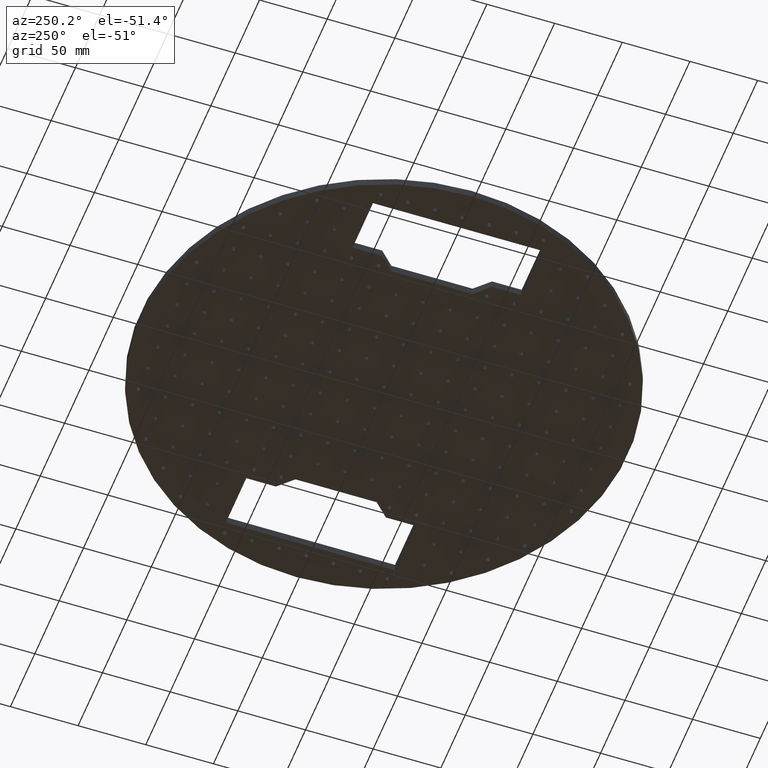
[diagram: clean part render]
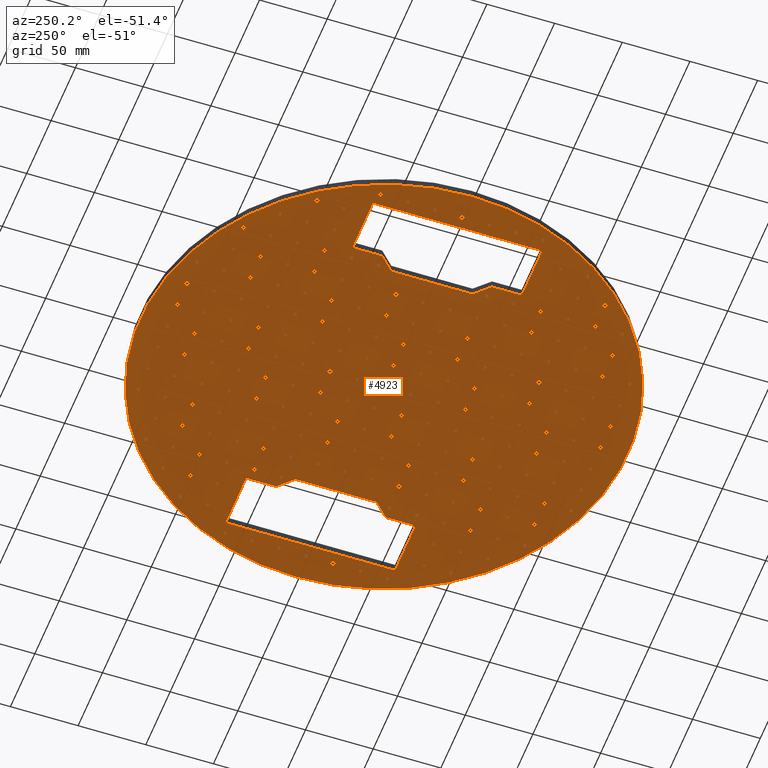
[diagram: same view with one face highlighted and labeled with its STEP entity id]
A machine part, auxiliary view. The second image highlights one B-rep face of the part: STEP entity #4923.
In plain terms, the highlighted planar face has unit normal (0, 0, 1).
Its self-contained STEP definition (entity closure, byte-faithful):
#223=FACE_BOUND('',#1286,.T.);
#224=FACE_BOUND('',#1287,.T.);
#225=FACE_BOUND('',#1288,.T.);
#226=FACE_BOUND('',#1289,.T.);
#227=FACE_BOUND('',#1290,.T.);
#228=FACE_BOUND('',#1291,.T.);
#229=FACE_BOUND('',#1292,.T.);
#230=FACE_BOUND('',#1293,.T.);
#231=FACE_BOUND('',#1294,.T.);
#232=FACE_BOUND('',#1295,.T.);
#233=FACE_BOUND('',#1296,.T.);
#234=FACE_BOUND('',#1297,.T.);
#235=FACE_BOUND('',#1298,.T.);
#236=FACE_BOUND('',#1299,.T.);
#237=FACE_BOUND('',#1300,.T.);
#238=FACE_BOUND('',#1301,.T.);
#239=FACE_BOUND('',#1302,.T.);
#240=FACE_BOUND('',#1303,.T.);
#241=FACE_BOUND('',#1304,.T.);
#242=FACE_BOUND('',#1305,.T.);
#243=FACE_BOUND('',#1306,.T.);
#244=FACE_BOUND('',#1307,.T.);
#245=FACE_BOUND('',#1308,.T.);
#246=FACE_BOUND('',#1309,.T.);
#247=FACE_BOUND('',#1310,.T.);
#248=FACE_BOUND('',#1311,.T.);
#249=FACE_BOUND('',#1312,.T.);
#250=FACE_BOUND('',#1313,.T.);
#251=FACE_BOUND('',#1314,.T.);
#252=FACE_BOUND('',#1315,.T.);
#253=FACE_BOUND('',#1316,.T.);
#254=FACE_BOUND('',#1317,.T.);
#255=FACE_BOUND('',#1318,.T.);
#256=FACE_BOUND('',#1319,.T.);
#257=FACE_BOUND('',#1320,.T.);
#258=FACE_BOUND('',#1321,.T.);
#259=FACE_BOUND('',#1322,.T.);
#260=FACE_BOUND('',#1323,.T.);
#261=FACE_BOUND('',#1324,.T.);
#262=FACE_BOUND('',#1325,.T.);
#263=FACE_BOUND('',#1326,.T.);
#264=FACE_BOUND('',#1327,.T.);
#265=FACE_BOUND('',#1328,.T.);
#266=FACE_BOUND('',#1329,.T.);
#267=FACE_BOUND('',#1330,.T.);
#268=FACE_BOUND('',#1331,.T.);
#269=FACE_BOUND('',#1332,.T.);
#270=FACE_BOUND('',#1333,.T.);
#271=FACE_BOUND('',#1334,.T.);
#272=FACE_BOUND('',#1335,.T.);
#273=FACE_BOUND('',#1336,.T.);
#274=FACE_BOUND('',#1337,.T.);
#275=FACE_BOUND('',#1338,.T.);
#276=FACE_BOUND('',#1339,.T.);
#277=FACE_BOUND('',#1340,.T.);
#278=FACE_BOUND('',#1341,.T.);
#279=FACE_BOUND('',#1342,.T.);
#280=FACE_BOUND('',#1343,.T.);
#281=FACE_BOUND('',#1344,.T.);
#282=FACE_BOUND('',#1345,.T.);
#283=FACE_BOUND('',#1346,.T.);
#284=FACE_BOUND('',#1347,.T.);
#285=FACE_BOUND('',#1348,.T.);
#286=FACE_BOUND('',#1349,.T.);
#287=FACE_BOUND('',#1350,.T.);
#288=FACE_BOUND('',#1351,.T.);
#289=FACE_BOUND('',#1352,.T.);
#290=FACE_BOUND('',#1353,.T.);
#291=FACE_BOUND('',#1354,.T.);
#292=FACE_BOUND('',#1355,.T.);
#293=FACE_BOUND('',#1356,.T.);
#294=FACE_BOUND('',#1357,.T.);
#295=FACE_BOUND('',#1358,.T.);
#296=FACE_BOUND('',#1359,.T.);
#297=FACE_BOUND('',#1360,.T.);
#298=FACE_BOUND('',#1361,.T.);
#299=FACE_BOUND('',#1362,.T.);
#300=FACE_BOUND('',#1363,.T.);
#301=FACE_BOUND('',#1364,.T.);
#302=FACE_BOUND('',#1365,.T.);
#303=FACE_BOUND('',#1366,.T.);
#304=FACE_BOUND('',#1367,.T.);
#305=FACE_BOUND('',#1368,.T.);
#306=FACE_BOUND('',#1369,.T.);
#307=FACE_BOUND('',#1370,.T.);
#308=FACE_BOUND('',#1371,.T.);
#309=FACE_BOUND('',#1372,.T.);
#310=FACE_BOUND('',#1373,.T.);
#311=FACE_BOUND('',#1374,.T.);
#312=FACE_BOUND('',#1375,.T.);
#313=FACE_BOUND('',#1376,.T.);
#314=FACE_BOUND('',#1377,.T.);
#315=FACE_BOUND('',#1378,.T.);
#316=FACE_BOUND('',#1379,.T.);
#317=FACE_BOUND('',#1380,.T.);
#318=FACE_BOUND('',#1381,.T.);
#319=FACE_BOUND('',#1382,.T.);
#320=FACE_BOUND('',#1383,.T.);
#321=FACE_BOUND('',#1384,.T.);
#322=FACE_BOUND('',#1385,.T.);
#323=FACE_BOUND('',#1386,.T.);
#324=FACE_BOUND('',#1387,.T.);
#325=FACE_BOUND('',#1388,.T.);
#326=FACE_BOUND('',#1389,.T.);
#327=FACE_BOUND('',#1390,.T.);
#328=FACE_BOUND('',#1391,.T.);
#329=FACE_BOUND('',#1392,.T.);
#330=FACE_BOUND('',#1393,.T.);
#331=FACE_BOUND('',#1394,.T.);
#332=FACE_BOUND('',#1395,.T.);
#333=FACE_BOUND('',#1396,.T.);
#334=FACE_BOUND('',#1397,.T.);
#335=FACE_BOUND('',#1398,.T.);
#336=FACE_BOUND('',#1399,.T.);
#337=FACE_BOUND('',#1400,.T.);
#338=FACE_BOUND('',#1401,.T.);
#339=FACE_BOUND('',#1402,.T.);
#340=FACE_BOUND('',#1403,.T.);
#341=FACE_BOUND('',#1404,.T.);
#342=FACE_BOUND('',#1405,.T.);
#343=FACE_BOUND('',#1406,.T.);
#344=FACE_BOUND('',#1407,.T.);
#345=FACE_BOUND('',#1408,.T.);
#346=FACE_BOUND('',#1409,.T.);
#347=FACE_BOUND('',#1410,.T.);
#348=FACE_BOUND('',#1411,.T.);
#349=FACE_BOUND('',#1412,.T.);
#350=FACE_BOUND('',#1413,.T.);
#351=FACE_BOUND('',#1414,.T.);
#352=FACE_BOUND('',#1415,.T.);
#353=FACE_BOUND('',#1416,.T.);
#354=FACE_BOUND('',#1417,.T.);
#355=FACE_BOUND('',#1418,.T.);
#356=FACE_BOUND('',#1419,.T.);
#357=FACE_BOUND('',#1420,.T.);
#358=FACE_BOUND('',#1421,.T.);
#359=FACE_BOUND('',#1422,.T.);
#360=FACE_BOUND('',#1423,.T.);
#361=FACE_BOUND('',#1424,.T.);
#362=FACE_BOUND('',#1425,.T.);
#363=FACE_BOUND('',#1426,.T.);
#364=FACE_BOUND('',#1427,.T.);
#365=FACE_BOUND('',#1428,.T.);
#366=FACE_BOUND('',#1429,.T.);
#367=FACE_BOUND('',#1430,.T.);
#368=FACE_BOUND('',#1431,.T.);
#369=FACE_BOUND('',#1432,.T.);
#370=FACE_BOUND('',#1433,.T.);
#371=FACE_BOUND('',#1434,.T.);
#372=FACE_BOUND('',#1435,.T.);
#373=FACE_BOUND('',#1436,.T.);
#374=FACE_BOUND('',#1437,.T.);
#375=FACE_BOUND('',#1438,.T.);
#376=FACE_BOUND('',#1439,.T.);
#377=FACE_BOUND('',#1440,.T.);
#378=FACE_BOUND('',#1441,.T.);
#379=FACE_BOUND('',#1442,.T.);
#380=FACE_BOUND('',#1443,.T.);
#381=FACE_BOUND('',#1444,.T.);
#382=FACE_BOUND('',#1445,.T.);
#383=FACE_BOUND('',#1446,.T.);
#384=FACE_BOUND('',#1447,.T.);
#385=FACE_BOUND('',#1448,.T.);
#386=FACE_BOUND('',#1449,.T.);
#387=FACE_BOUND('',#1450,.T.);
#388=FACE_BOUND('',#1451,.T.);
#389=FACE_BOUND('',#1452,.T.);
#390=FACE_BOUND('',#1453,.T.);
#391=FACE_BOUND('',#1454,.T.);
#392=FACE_BOUND('',#1455,.T.);
#393=FACE_BOUND('',#1456,.T.);
#394=FACE_BOUND('',#1457,.T.);
#395=FACE_BOUND('',#1458,.T.);
#396=FACE_BOUND('',#1459,.T.);
#397=FACE_BOUND('',#1460,.T.);
#398=FACE_BOUND('',#1461,.T.);
#399=FACE_BOUND('',#1462,.T.);
#400=FACE_BOUND('',#1463,.T.);
#401=FACE_BOUND('',#1464,.T.);
#402=FACE_BOUND('',#1465,.T.);
#403=FACE_BOUND('',#1466,.T.);
#404=FACE_BOUND('',#1467,.T.);
#405=FACE_BOUND('',#1468,.T.);
#406=FACE_BOUND('',#1469,.T.);
#407=FACE_BOUND('',#1470,.T.);
#408=FACE_BOUND('',#1471,.T.);
#409=FACE_BOUND('',#1472,.T.);
#410=FACE_BOUND('',#1473,.T.);
#411=FACE_BOUND('',#1474,.T.);
#412=FACE_BOUND('',#1475,.T.);
#413=FACE_BOUND('',#1476,.T.);
#414=FACE_BOUND('',#1477,.T.);
#415=FACE_BOUND('',#1478,.T.);
#416=FACE_BOUND('',#1479,.T.);
#417=FACE_BOUND('',#1480,.T.);
#418=FACE_BOUND('',#1481,.T.);
#419=FACE_BOUND('',#1482,.T.);
#420=FACE_BOUND('',#1483,.T.);
#421=FACE_BOUND('',#1484,.T.);
#422=FACE_BOUND('',#1485,.T.);
#423=FACE_BOUND('',#1486,.T.);
#424=FACE_BOUND('',#1487,.T.);
#425=FACE_BOUND('',#1488,.T.);
#426=FACE_BOUND('',#1489,.T.);
#427=FACE_BOUND('',#1490,.T.);
#428=FACE_BOUND('',#1491,.T.);
#429=FACE_BOUND('',#1492,.T.);
#430=FACE_BOUND('',#1493,.T.);
#431=FACE_BOUND('',#1494,.T.);
#641=CIRCLE('',#5164,180.);
#642=CIRCLE('',#5165,1.6);
#643=CIRCLE('',#5166,1.6);
#644=CIRCLE('',#5167,1.6);
#645=CIRCLE('',#5168,1.6);
#646=CIRCLE('',#5169,1.6);
#647=CIRCLE('',#5170,1.6);
#648=CIRCLE('',#5171,1.6);
#649=CIRCLE('',#5172,1.6);
#650=CIRCLE('',#5173,1.6);
#651=CIRCLE('',#5174,1.6);
#652=CIRCLE('',#5175,1.6);
#653=CIRCLE('',#5176,1.6);
#654=CIRCLE('',#5177,1.6);
#655=CIRCLE('',#5178,1.6);
#656=CIRCLE('',#5179,1.6);
#657=CIRCLE('',#5180,1.6);
#658=CIRCLE('',#5181,1.6);
#659=CIRCLE('',#5182,1.6);
#660=CIRCLE('',#5183,1.6);
#661=CIRCLE('',#5184,1.6);
#662=CIRCLE('',#5185,1.6);
#663=CIRCLE('',#5186,1.6);
#664=CIRCLE('',#5187,1.6);
#665=CIRCLE('',#5188,1.6);
#666=CIRCLE('',#5189,1.6);
#667=CIRCLE('',#5190,1.6);
#668=CIRCLE('',#5191,1.6);
#669=CIRCLE('',#5192,1.6);
#670=CIRCLE('',#5193,1.6);
#671=CIRCLE('',#5194,1.6);
#672=CIRCLE('',#5195,1.6);
#673=CIRCLE('',#5196,1.6);
#674=CIRCLE('',#5197,1.6);
#675=CIRCLE('',#5198,1.6);
#676=CIRCLE('',#5199,1.6);
#677=CIRCLE('',#5200,1.6);
#678=CIRCLE('',#5201,1.6);
#679=CIRCLE('',#5202,1.6);
#680=CIRCLE('',#5203,1.6);
#681=CIRCLE('',#5204,1.6);
#682=CIRCLE('',#5205,1.6);
#683=CIRCLE('',#5206,1.6);
#684=CIRCLE('',#5207,1.6);
#685=CIRCLE('',#5208,1.6);
#686=CIRCLE('',#5209,1.6);
#687=CIRCLE('',#5210,1.6);
#688=CIRCLE('',#5211,1.6);
#689=CIRCLE('',#5212,1.6);
#690=CIRCLE('',#5213,1.6);
#691=CIRCLE('',#5214,1.6);
#692=CIRCLE('',#5215,1.6);
#693=CIRCLE('',#5216,1.6);
#694=CIRCLE('',#5217,1.6);
#695=CIRCLE('',#5218,1.6);
#696=CIRCLE('',#5219,1.6);
#697=CIRCLE('',#5220,1.6);
#698=CIRCLE('',#5221,1.6);
#699=CIRCLE('',#5222,1.6);
#700=CIRCLE('',#5223,1.6);
#701=CIRCLE('',#5224,1.6);
#702=CIRCLE('',#5225,1.6);
#703=CIRCLE('',#5226,1.6);
#704=CIRCLE('',#5227,1.6);
#705=CIRCLE('',#5228,1.6);
#706=CIRCLE('',#5229,1.6);
#707=CIRCLE('',#5230,1.6);
#708=CIRCLE('',#5231,1.6);
#709=CIRCLE('',#5232,1.6);
#710=CIRCLE('',#5233,1.6);
#711=CIRCLE('',#5234,1.6);
#712=CIRCLE('',#5235,1.6);
#713=CIRCLE('',#5236,1.6);
#714=CIRCLE('',#5237,1.6);
#715=CIRCLE('',#5238,1.6);
#716=CIRCLE('',#5239,1.6);
#717=CIRCLE('',#5240,1.6);
#718=CIRCLE('',#5241,1.6);
#719=CIRCLE('',#5242,1.6);
#720=CIRCLE('',#5243,1.6);
#721=CIRCLE('',#5244,1.6);
#722=CIRCLE('',#5245,1.6);
#723=CIRCLE('',#5246,1.6);
#724=CIRCLE('',#5247,1.6);
#725=CIRCLE('',#5248,1.6);
#726=CIRCLE('',#5249,1.6);
#727=CIRCLE('',#5250,1.6);
#728=CIRCLE('',#5251,1.6);
#729=CIRCLE('',#5252,1.6);
#730=CIRCLE('',#5253,1.6);
#731=CIRCLE('',#5254,1.6);
#732=CIRCLE('',#5255,1.6);
#733=CIRCLE('',#5256,1.6);
#734=CIRCLE('',#5257,1.6);
#735=CIRCLE('',#5258,1.6);
#736=CIRCLE('',#5259,1.6);
#737=CIRCLE('',#5260,1.6);
#738=CIRCLE('',#5261,1.6);
#739=CIRCLE('',#5262,1.6);
#740=CIRCLE('',#5263,1.6);
#741=CIRCLE('',#5264,1.6);
#742=CIRCLE('',#5265,1.6);
#743=CIRCLE('',#5266,1.6);
#744=CIRCLE('',#5267,1.6);
#745=CIRCLE('',#5268,1.6);
#746=CIRCLE('',#5269,1.6);
#747=CIRCLE('',#5270,1.6);
#748=CIRCLE('',#5271,1.6);
#749=CIRCLE('',#5272,1.6);
#750=CIRCLE('',#5273,1.6);
#751=CIRCLE('',#5274,1.6);
#752=CIRCLE('',#5275,1.6);
#753=CIRCLE('',#5276,1.6);
#754=CIRCLE('',#5277,1.6);
#755=CIRCLE('',#5278,1.6);
#756=CIRCLE('',#5279,1.6);
#757=CIRCLE('',#5280,1.6);
#758=CIRCLE('',#5281,1.6);
#759=CIRCLE('',#5282,1.6);
#760=CIRCLE('',#5283,1.6);
#761=CIRCLE('',#5284,1.6);
#762=CIRCLE('',#5285,1.6);
#763=CIRCLE('',#5286,1.6);
#764=CIRCLE('',#5287,1.6);
#765=CIRCLE('',#5288,1.6);
#766=CIRCLE('',#5289,1.6);
#767=CIRCLE('',#5290,1.6);
#768=CIRCLE('',#5291,1.6);
#769=CIRCLE('',#5292,1.6);
#770=CIRCLE('',#5293,1.6);
#771=CIRCLE('',#5294,1.6);
#772=CIRCLE('',#5295,1.6);
#773=CIRCLE('',#5296,1.6);
#774=CIRCLE('',#5297,1.6);
#775=CIRCLE('',#5298,1.6);
#776=CIRCLE('',#5299,1.6);
#777=CIRCLE('',#5300,1.6);
#778=CIRCLE('',#5301,1.6);
#779=CIRCLE('',#5302,1.6);
#780=CIRCLE('',#5303,1.6);
#781=CIRCLE('',#5304,1.6);
#782=CIRCLE('',#5305,1.6);
#783=CIRCLE('',#5306,1.6);
#784=CIRCLE('',#5307,1.6);
#785=CIRCLE('',#5308,1.6);
#786=CIRCLE('',#5309,1.6);
#787=CIRCLE('',#5310,1.6);
#788=CIRCLE('',#5311,1.6);
#789=CIRCLE('',#5312,1.6);
#790=CIRCLE('',#5313,1.6);
#791=CIRCLE('',#5314,1.6);
#792=CIRCLE('',#5315,1.6);
#793=CIRCLE('',#5316,1.6);
#794=CIRCLE('',#5317,1.6);
#795=CIRCLE('',#5318,1.6);
#796=CIRCLE('',#5319,1.6);
#797=CIRCLE('',#5320,1.6);
#798=CIRCLE('',#5321,1.6);
#799=CIRCLE('',#5322,1.6);
#800=CIRCLE('',#5323,1.6);
#801=CIRCLE('',#5324,1.6);
#802=CIRCLE('',#5325,1.6);
#803=CIRCLE('',#5326,1.6);
#804=CIRCLE('',#5327,1.6);
#805=CIRCLE('',#5328,1.6);
#806=CIRCLE('',#5329,1.6);
#807=CIRCLE('',#5330,1.6);
#808=CIRCLE('',#5331,1.6);
#809=CIRCLE('',#5332,1.6);
#810=CIRCLE('',#5333,1.6);
#811=CIRCLE('',#5334,1.6);
#812=CIRCLE('',#5335,1.6);
#813=CIRCLE('',#5336,1.6);
#814=CIRCLE('',#5337,1.6);
#815=CIRCLE('',#5338,1.6);
#816=CIRCLE('',#5339,1.6);
#817=CIRCLE('',#5340,1.6);
#818=CIRCLE('',#5341,1.6);
#819=CIRCLE('',#5342,1.6);
#820=CIRCLE('',#5343,1.6);
#821=CIRCLE('',#5344,1.6);
#822=CIRCLE('',#5345,1.6);
#823=CIRCLE('',#5346,1.6);
#824=CIRCLE('',#5347,1.6);
#825=CIRCLE('',#5348,1.6);
#826=CIRCLE('',#5349,1.6);
#827=CIRCLE('',#5350,1.6);
#828=CIRCLE('',#5351,1.6);
#829=CIRCLE('',#5352,1.6);
#830=CIRCLE('',#5353,1.6);
#831=CIRCLE('',#5354,1.6);
#832=CIRCLE('',#5355,1.6);
#833=CIRCLE('',#5356,1.6);
#834=CIRCLE('',#5357,1.6);
#835=CIRCLE('',#5358,1.6);
#836=CIRCLE('',#5359,1.6);
#837=CIRCLE('',#5360,1.6);
#838=CIRCLE('',#5361,1.6);
#839=CIRCLE('',#5362,1.6);
#840=CIRCLE('',#5363,1.6);
#841=CIRCLE('',#5364,1.6);
#842=CIRCLE('',#5365,1.6);
#843=CIRCLE('',#5366,1.6);
#844=CIRCLE('',#5367,1.6);
#845=CIRCLE('',#5368,1.6);
#846=CIRCLE('',#5369,1.6);
#847=CIRCLE('',#5370,1.6);
#848=CIRCLE('',#5371,1.6);
#1059=FACE_OUTER_BOUND('',#1285,.T.);
#1285=EDGE_LOOP('',(#3567));
#1286=EDGE_LOOP('',(#3568,#3569,#3570,#3571,#3572,#3573,#3574,#3575));
#1287=EDGE_LOOP('',(#3576,#3577,#3578,#3579,#3580,#3581,#3582,#3583));
#1288=EDGE_LOOP('',(#3584));
#1289=EDGE_LOOP('',(#3585));
#1290=EDGE_LOOP('',(#3586));
#1291=EDGE_LOOP('',(#3587));
#1292=EDGE_LOOP('',(#3588));
#1293=EDGE_LOOP('',(#3589));
#1294=EDGE_LOOP('',(#3590));
#1295=EDGE_LOOP('',(#3591));
#1296=EDGE_LOOP('',(#3592));
#1297=EDGE_LOOP('',(#3593));
#1298=EDGE_LOOP('',(#3594));
#1299=EDGE_LOOP('',(#3595));
#1300=EDGE_LOOP('',(#3596));
#1301=EDGE_LOOP('',(#3597));
#1302=EDGE_LOOP('',(#3598));
#1303=EDGE_LOOP('',(#3599));
#1304=EDGE_LOOP('',(#3600));
#1305=EDGE_LOOP('',(#3601));
#1306=EDGE_LOOP('',(#3602));
#1307=EDGE_LOOP('',(#3603));
#1308=EDGE_LOOP('',(#3604));
#1309=EDGE_LOOP('',(#3605));
#1310=EDGE_LOOP('',(#3606));
#1311=EDGE_LOOP('',(#3607));
#1312=EDGE_LOOP('',(#3608));
#1313=EDGE_LOOP('',(#3609));
#1314=EDGE_LOOP('',(#3610));
#1315=EDGE_LOOP('',(#3611));
#1316=EDGE_LOOP('',(#3612));
#1317=EDGE_LOOP('',(#3613));
#1318=EDGE_LOOP('',(#3614));
#1319=EDGE_LOOP('',(#3615));
#1320=EDGE_LOOP('',(#3616));
#1321=EDGE_LOOP('',(#3617));
#1322=EDGE_LOOP('',(#3618));
#1323=EDGE_LOOP('',(#3619));
#1324=EDGE_LOOP('',(#3620));
#1325=EDGE_LOOP('',(#3621));
#1326=EDGE_LOOP('',(#3622));
#1327=EDGE_LOOP('',(#3623));
#1328=EDGE_LOOP('',(#3624));
#1329=EDGE_LOOP('',(#3625));
#1330=EDGE_LOOP('',(#3626));
#1331=EDGE_LOOP('',(#3627));
#1332=EDGE_LOOP('',(#3628));
#1333=EDGE_LOOP('',(#3629));
#1334=EDGE_LOOP('',(#3630));
#1335=EDGE_LOOP('',(#3631));
#1336=EDGE_LOOP('',(#3632));
#1337=EDGE_LOOP('',(#3633));
#1338=EDGE_LOOP('',(#3634));
#1339=EDGE_LOOP('',(#3635));
#1340=EDGE_LOOP('',(#3636));
#1341=EDGE_LOOP('',(#3637));
#1342=EDGE_LOOP('',(#3638));
#1343=EDGE_LOOP('',(#3639));
#1344=EDGE_LOOP('',(#3640));
#1345=EDGE_LOOP('',(#3641));
#1346=EDGE_LOOP('',(#3642));
#1347=EDGE_LOOP('',(#3643));
#1348=EDGE_LOOP('',(#3644));
#1349=EDGE_LOOP('',(#3645));
#1350=EDGE_LOOP('',(#3646));
#1351=EDGE_LOOP('',(#3647));
#1352=EDGE_LOOP('',(#3648));
#1353=EDGE_LOOP('',(#3649));
#1354=EDGE_LOOP('',(#3650));
#1355=EDGE_LOOP('',(#3651));
#1356=EDGE_LOOP('',(#3652));
#1357=EDGE_LOOP('',(#3653));
#1358=EDGE_LOOP('',(#3654));
#1359=EDGE_LOOP('',(#3655));
#1360=EDGE_LOOP('',(#3656));
#1361=EDGE_LOOP('',(#3657));
#1362=EDGE_LOOP('',(#3658));
#1363=EDGE_LOOP('',(#3659));
#1364=EDGE_LOOP('',(#3660));
#1365=EDGE_LOOP('',(#3661));
#1366=EDGE_LOOP('',(#3662));
#1367=EDGE_LOOP('',(#3663));
#1368=EDGE_LOOP('',(#3664));
#1369=EDGE_LOOP('',(#3665));
#1370=EDGE_LOOP('',(#3666));
#1371=EDGE_LOOP('',(#3667));
#1372=EDGE_LOOP('',(#3668));
#1373=EDGE_LOOP('',(#3669));
#1374=EDGE_LOOP('',(#3670));
#1375=EDGE_LOOP('',(#3671));
#1376=EDGE_LOOP('',(#3672));
#1377=EDGE_LOOP('',(#3673));
#1378=EDGE_LOOP('',(#3674));
#1379=EDGE_LOOP('',(#3675));
#1380=EDGE_LOOP('',(#3676));
#1381=EDGE_LOOP('',(#3677));
#1382=EDGE_LOOP('',(#3678));
#1383=EDGE_LOOP('',(#3679));
#1384=EDGE_LOOP('',(#3680));
#1385=EDGE_LOOP('',(#3681));
#1386=EDGE_LOOP('',(#3682));
#1387=EDGE_LOOP('',(#3683));
#1388=EDGE_LOOP('',(#3684));
#1389=EDGE_LOOP('',(#3685));
#1390=EDGE_LOOP('',(#3686));
#1391=EDGE_LOOP('',(#3687));
#1392=EDGE_LOOP('',(#3688));
#1393=EDGE_LOOP('',(#3689));
#1394=EDGE_LOOP('',(#3690));
#1395=EDGE_LOOP('',(#3691));
#1396=EDGE_LOOP('',(#3692));
#1397=EDGE_LOOP('',(#3693));
#1398=EDGE_LOOP('',(#3694));
#1399=EDGE_LOOP('',(#3695));
#1400=EDGE_LOOP('',(#3696));
#1401=EDGE_LOOP('',(#3697));
#1402=EDGE_LOOP('',(#3698));
#1403=EDGE_LOOP('',(#3699));
#1404=EDGE_LOOP('',(#3700));
#1405=EDGE_LOOP('',(#3701));
#1406=EDGE_LOOP('',(#3702));
#1407=EDGE_LOOP('',(#3703));
#1408=EDGE_LOOP('',(#3704));
#1409=EDGE_LOOP('',(#3705));
#1410=EDGE_LOOP('',(#3706));
#1411=EDGE_LOOP('',(#3707));
#1412=EDGE_LOOP('',(#3708));
#1413=EDGE_LOOP('',(#3709));
#1414=EDGE_LOOP('',(#3710));
#1415=EDGE_LOOP('',(#3711));
#1416=EDGE_LOOP('',(#3712));
#1417=EDGE_LOOP('',(#3713));
#1418=EDGE_LOOP('',(#3714));
#1419=EDGE_LOOP('',(#3715));
#1420=EDGE_LOOP('',(#3716));
#1421=EDGE_LOOP('',(#3717));
#1422=EDGE_LOOP('',(#3718));
#1423=EDGE_LOOP('',(#3719));
#1424=EDGE_LOOP('',(#3720));
#1425=EDGE_LOOP('',(#3721));
#1426=EDGE_LOOP('',(#3722));
#1427=EDGE_LOOP('',(#3723));
#1428=EDGE_LOOP('',(#3724));
#1429=EDGE_LOOP('',(#3725));
#1430=EDGE_LOOP('',(#3726));
#1431=EDGE_LOOP('',(#3727));
#1432=EDGE_LOOP('',(#3728));
#1433=EDGE_LOOP('',(#3729));
#1434=EDGE_LOOP('',(#3730));
#1435=EDGE_LOOP('',(#3731));
#1436=EDGE_LOOP('',(#3732));
#1437=EDGE_LOOP('',(#3733));
#1438=EDGE_LOOP('',(#3734));
#1439=EDGE_LOOP('',(#3735));
#1440=EDGE_LOOP('',(#3736));
#1441=EDGE_LOOP('',(#3737));
#1442=EDGE_LOOP('',(#3738));
#1443=EDGE_LOOP('',(#3739));
#1444=EDGE_LOOP('',(#3740));
#1445=EDGE_LOOP('',(#3741));
#1446=EDGE_LOOP('',(#3742));
#1447=EDGE_LOOP('',(#3743));
#1448=EDGE_LOOP('',(#3744));
#1449=EDGE_LOOP('',(#3745));
#1450=EDGE_LOOP('',(#3746));
#1451=EDGE_LOOP('',(#3747));
#1452=EDGE_LOOP('',(#3748));
#1453=EDGE_LOOP('',(#3749));
#1454=EDGE_LOOP('',(#3750));
#1455=EDGE_LOOP('',(#3751));
#1456=EDGE_LOOP('',(#3752));
#1457=EDGE_LOOP('',(#3753));
#1458=EDGE_LOOP('',(#3754));
#1459=EDGE_LOOP('',(#3755));
#1460=EDGE_LOOP('',(#3756));
#1461=EDGE_LOOP('',(#3757));
#1462=EDGE_LOOP('',(#3758));
#1463=EDGE_LOOP('',(#3759));
#1464=EDGE_LOOP('',(#3760));
#1465=EDGE_LOOP('',(#3761));
#1466=EDGE_LOOP('',(#3762));
#1467=EDGE_LOOP('',(#3763));
#1468=EDGE_LOOP('',(#3764));
#1469=EDGE_LOOP('',(#3765));
#1470=EDGE_LOOP('',(#3766));
#1471=EDGE_LOOP('',(#3767));
#1472=EDGE_LOOP('',(#3768));
#1473=EDGE_LOOP('',(#3769));
#1474=EDGE_LOOP('',(#3770));
#1475=EDGE_LOOP('',(#3771));
#1476=EDGE_LOOP('',(#3772));
#1477=EDGE_LOOP('',(#3773));
#1478=EDGE_LOOP('',(#3774));
#1479=EDGE_LOOP('',(#3775));
#1480=EDGE_LOOP('',(#3776));
#1481=EDGE_LOOP('',(#3777));
#1482=EDGE_LOOP('',(#3778));
#1483=EDGE_LOOP('',(#3779));
#1484=EDGE_LOOP('',(#3780));
#1485=EDGE_LOOP('',(#3781));
#1486=EDGE_LOOP('',(#3782));
#1487=EDGE_LOOP('',(#3783));
#1488=EDGE_LOOP('',(#3784));
#1489=EDGE_LOOP('',(#3785));
#1490=EDGE_LOOP('',(#3786));
#1491=EDGE_LOOP('',(#3787));
#1492=EDGE_LOOP('',(#3788));
#1493=EDGE_LOOP('',(#3789));
#1494=EDGE_LOOP('',(#3790));
#1929=LINE('',#7353,#2185);
#1931=LINE('',#7357,#2187);
#1934=LINE('',#7365,#2190);
#1935=LINE('',#7367,#2191);
#1936=LINE('',#7369,#2192);
#1937=LINE('',#7371,#2193);
#1938=LINE('',#7373,#2194);
#1939=LINE('',#7374,#2195);
#1940=LINE('',#7377,#2196);
#1941=LINE('',#7379,#2197);
#1942=LINE('',#7381,#2198);
#1943=LINE('',#7383,#2199);
#1944=LINE('',#7385,#2200);
#1945=LINE('',#7387,#2201);
#1946=LINE('',#7389,#2202);
#1947=LINE('',#7390,#2203);
#2185=VECTOR('',#5809,10.);
#2187=VECTOR('',#5813,10.);
#2190=VECTOR('',#5820,10.);
#2191=VECTOR('',#5821,10.);
#2192=VECTOR('',#5822,10.);
#2193=VECTOR('',#5823,10.);
#2194=VECTOR('',#5824,10.);
#2195=VECTOR('',#5825,10.);
#2196=VECTOR('',#5826,10.);
#2197=VECTOR('',#5827,10.);
#2198=VECTOR('',#5828,10.);
#2199=VECTOR('',#5829,10.);
#2200=VECTOR('',#5830,10.);
#2201=VECTOR('',#5831,10.);
#2202=VECTOR('',#5832,10.);
#2203=VECTOR('',#5833,10.);
#2441=VERTEX_POINT('',#7350);
#2442=VERTEX_POINT('',#7352);
#2443=VERTEX_POINT('',#7356);
#2445=VERTEX_POINT('',#7362);
#2446=VERTEX_POINT('',#7364);
#2447=VERTEX_POINT('',#7366);
#2448=VERTEX_POINT('',#7368);
#2449=VERTEX_POINT('',#7370);
#2450=VERTEX_POINT('',#7372);
#2451=VERTEX_POINT('',#7375);
#2452=VERTEX_POINT('',#7376);
#2453=VERTEX_POINT('',#7378);
#2454=VERTEX_POINT('',#7380);
#2455=VERTEX_POINT('',#7382);
#2456=VERTEX_POINT('',#7384);
#2457=VERTEX_POINT('',#7386);
#2458=VERTEX_POINT('',#7388);
#2459=VERTEX_POINT('',#7391);
#2460=VERTEX_POINT('',#7393);
#2461=VERTEX_POINT('',#7395);
#2462=VERTEX_POINT('',#7397);
#2463=VERTEX_POINT('',#7399);
#2464=VERTEX_POINT('',#7401);
#2465=VERTEX_POINT('',#7403);
#2466=VERTEX_POINT('',#7405);
#2467=VERTEX_POINT('',#7407);
#2468=VERTEX_POINT('',#7409);
#2469=VERTEX_POINT('',#7411);
#2470=VERTEX_POINT('',#7413);
#2471=VERTEX_POINT('',#7415);
#2472=VERTEX_POINT('',#7417);
#2473=VERTEX_POINT('',#7419);
#2474=VERTEX_POINT('',#7421);
#2475=VERTEX_POINT('',#7423);
#2476=VERTEX_POINT('',#7425);
#2477=VERTEX_POINT('',#7427);
#2478=VERTEX_POINT('',#7429);
#2479=VERTEX_POINT('',#7431);
#2480=VERTEX_POINT('',#7433);
#2481=VERTEX_POINT('',#7435);
#2482=VERTEX_POINT('',#7437);
#2483=VERTEX_POINT('',#7439);
#2484=VERTEX_POINT('',#7441);
#2485=VERTEX_POINT('',#7443);
#2486=VERTEX_POINT('',#7445);
#2487=VERTEX_POINT('',#7447);
#2488=VERTEX_POINT('',#7449);
#2489=VERTEX_POINT('',#7451);
#2490=VERTEX_POINT('',#7453);
#2491=VERTEX_POINT('',#7455);
#2492=VERTEX_POINT('',#7457);
#2493=VERTEX_POINT('',#7459);
#2494=VERTEX_POINT('',#7461);
#2495=VERTEX_POINT('',#7463);
#2496=VERTEX_POINT('',#7465);
#2497=VERTEX_POINT('',#7467);
#2498=VERTEX_POINT('',#7469);
#2499=VERTEX_POINT('',#7471);
#2500=VERTEX_POINT('',#7473);
#2501=VERTEX_POINT('',#7475);
#2502=VERTEX_POINT('',#7477);
#2503=VERTEX_POINT('',#7479);
#2504=VERTEX_POINT('',#7481);
#2505=VERTEX_POINT('',#7483);
#2506=VERTEX_POINT('',#7485);
#2507=VERTEX_POINT('',#7487);
#2508=VERTEX_POINT('',#7489);
#2509=VERTEX_POINT('',#7491);
#2510=VERTEX_POINT('',#7493);
#2511=VERTEX_POINT('',#7495);
#2512=VERTEX_POINT('',#7497);
#2513=VERTEX_POINT('',#7499);
#2514=VERTEX_POINT('',#7501);
#2515=VERTEX_POINT('',#7503);
#2516=VERTEX_POINT('',#7505);
#2517=VERTEX_POINT('',#7507);
#2518=VERTEX_POINT('',#7509);
#2519=VERTEX_POINT('',#7511);
#2520=VERTEX_POINT('',#7513);
#2521=VERTEX_POINT('',#7515);
#2522=VERTEX_POINT('',#7517);
#2523=VERTEX_POINT('',#7519);
#2524=VERTEX_POINT('',#7521);
#2525=VERTEX_POINT('',#7523);
#2526=VERTEX_POINT('',#7525);
#2527=VERTEX_POINT('',#7527);
#2528=VERTEX_POINT('',#7529);
#2529=VERTEX_POINT('',#7531);
#2530=VERTEX_POINT('',#7533);
#2531=VERTEX_POINT('',#7535);
#2532=VERTEX_POINT('',#7537);
#2533=VERTEX_POINT('',#7539);
#2534=VERTEX_POINT('',#7541);
#2535=VERTEX_POINT('',#7543);
#2536=VERTEX_POINT('',#7545);
#2537=VERTEX_POINT('',#7547);
#2538=VERTEX_POINT('',#7549);
#2539=VERTEX_POINT('',#7551);
#2540=VERTEX_POINT('',#7553);
#2541=VERTEX_POINT('',#7555);
#2542=VERTEX_POINT('',#7557);
#2543=VERTEX_POINT('',#7559);
#2544=VERTEX_POINT('',#7561);
#2545=VERTEX_POINT('',#7563);
#2546=VERTEX_POINT('',#7565);
#2547=VERTEX_POINT('',#7567);
#2548=VERTEX_POINT('',#7569);
#2549=VERTEX_POINT('',#7571);
#2550=VERTEX_POINT('',#7573);
#2551=VERTEX_POINT('',#7575);
#2552=VERTEX_POINT('',#7577);
#2553=VERTEX_POINT('',#7579);
#2554=VERTEX_POINT('',#7581);
#2555=VERTEX_POINT('',#7583);
#2556=VERTEX_POINT('',#7585);
#2557=VERTEX_POINT('',#7587);
#2558=VERTEX_POINT('',#7589);
#2559=VERTEX_POINT('',#7591);
#2560=VERTEX_POINT('',#7593);
#2561=VERTEX_POINT('',#7595);
#2562=VERTEX_POINT('',#7597);
#2563=VERTEX_POINT('',#7599);
#2564=VERTEX_POINT('',#7601);
#2565=VERTEX_POINT('',#7603);
#2566=VERTEX_POINT('',#7605);
#2567=VERTEX_POINT('',#7607);
#2568=VERTEX_POINT('',#7609);
#2569=VERTEX_POINT('',#7611);
#2570=VERTEX_POINT('',#7613);
#2571=VERTEX_POINT('',#7615);
#2572=VERTEX_POINT('',#7617);
#2573=VERTEX_POINT('',#7619);
#2574=VERTEX_POINT('',#7621);
#2575=VERTEX_POINT('',#7623);
#2576=VERTEX_POINT('',#7625);
#2577=VERTEX_POINT('',#7627);
#2578=VERTEX_POINT('',#7629);
#2579=VERTEX_POINT('',#7631);
#2580=VERTEX_POINT('',#7633);
#2581=VERTEX_POINT('',#7635);
#2582=VERTEX_POINT('',#7637);
#2583=VERTEX_POINT('',#7639);
#2584=VERTEX_POINT('',#7641);
#2585=VERTEX_POINT('',#7643);
#2586=VERTEX_POINT('',#7645);
#2587=VERTEX_POINT('',#7647);
#2588=VERTEX_POINT('',#7649);
#2589=VERTEX_POINT('',#7651);
#2590=VERTEX_POINT('',#7653);
#2591=VERTEX_POINT('',#7655);
#2592=VERTEX_POINT('',#7657);
#2593=VERTEX_POINT('',#7659);
#2594=VERTEX_POINT('',#7661);
#2595=VERTEX_POINT('',#7663);
#2596=VERTEX_POINT('',#7665);
#2597=VERTEX_POINT('',#7667);
#2598=VERTEX_POINT('',#7669);
#2599=VERTEX_POINT('',#7671);
#2600=VERTEX_POINT('',#7673);
#2601=VERTEX_POINT('',#7675);
#2602=VERTEX_POINT('',#7677);
#2603=VERTEX_POINT('',#7679);
#2604=VERTEX_POINT('',#7681);
#2605=VERTEX_POINT('',#7683);
#2606=VERTEX_POINT('',#7685);
#2607=VERTEX_POINT('',#7687);
#2608=VERTEX_POINT('',#7689);
#2609=VERTEX_POINT('',#7691);
#2610=VERTEX_POINT('',#7693);
#2611=VERTEX_POINT('',#7695);
#2612=VERTEX_POINT('',#7697);
#2613=VERTEX_POINT('',#7699);
#2614=VERTEX_POINT('',#7701);
#2615=VERTEX_POINT('',#7703);
#2616=VERTEX_POINT('',#7705);
#2617=VERTEX_POINT('',#7707);
#2618=VERTEX_POINT('',#7709);
#2619=VERTEX_POINT('',#7711);
#2620=VERTEX_POINT('',#7713);
#2621=VERTEX_POINT('',#7715);
#2622=VERTEX_POINT('',#7717);
#2623=VERTEX_POINT('',#7719);
#2624=VERTEX_POINT('',#7721);
#2625=VERTEX_POINT('',#7723);
#2626=VERTEX_POINT('',#7725);
#2627=VERTEX_POINT('',#7727);
#2628=VERTEX_POINT('',#7729);
#2629=VERTEX_POINT('',#7731);
#2630=VERTEX_POINT('',#7733);
#2631=VERTEX_POINT('',#7735);
#2632=VERTEX_POINT('',#7737);
#2633=VERTEX_POINT('',#7739);
#2634=VERTEX_POINT('',#7741);
#2635=VERTEX_POINT('',#7743);
#2636=VERTEX_POINT('',#7745);
#2637=VERTEX_POINT('',#7747);
#2638=VERTEX_POINT('',#7749);
#2639=VERTEX_POINT('',#7751);
#2640=VERTEX_POINT('',#7753);
#2641=VERTEX_POINT('',#7755);
#2642=VERTEX_POINT('',#7757);
#2643=VERTEX_POINT('',#7759);
#2644=VERTEX_POINT('',#7761);
#2645=VERTEX_POINT('',#7763);
#2646=VERTEX_POINT('',#7765);
#2647=VERTEX_POINT('',#7767);
#2648=VERTEX_POINT('',#7769);
#2649=VERTEX_POINT('',#7771);
#2650=VERTEX_POINT('',#7773);
#2651=VERTEX_POINT('',#7775);
#2652=VERTEX_POINT('',#7777);
#2653=VERTEX_POINT('',#7779);
#2654=VERTEX_POINT('',#7781);
#2655=VERTEX_POINT('',#7783);
#2656=VERTEX_POINT('',#7785);
#2657=VERTEX_POINT('',#7787);
#2658=VERTEX_POINT('',#7789);
#2659=VERTEX_POINT('',#7791);
#2660=VERTEX_POINT('',#7793);
#2661=VERTEX_POINT('',#7795);
#2662=VERTEX_POINT('',#7797);
#2663=VERTEX_POINT('',#7799);
#2664=VERTEX_POINT('',#7801);
#2665=VERTEX_POINT('',#7803);
#2889=EDGE_CURVE('',#2441,#2442,#1929,.T.);
#2891=EDGE_CURVE('',#2443,#2442,#1931,.T.);
#2894=EDGE_CURVE('',#2445,#2445,#641,.T.);
#2895=EDGE_CURVE('',#2441,#2446,#1934,.T.);
#2896=EDGE_CURVE('',#2447,#2446,#1935,.T.);
#2897=EDGE_CURVE('',#2447,#2448,#1936,.T.);
#2898=EDGE_CURVE('',#2448,#2449,#1937,.T.);
#2899=EDGE_CURVE('',#2449,#2450,#1938,.T.);
#2900=EDGE_CURVE('',#2450,#2443,#1939,.T.);
#2901=EDGE_CURVE('',#2451,#2452,#1940,.T.);
#2902=EDGE_CURVE('',#2451,#2453,#1941,.T.);
#2903=EDGE_CURVE('',#2453,#2454,#1942,.T.);
#2904=EDGE_CURVE('',#2454,#2455,#1943,.T.);
#2905=EDGE_CURVE('',#2455,#2456,#1944,.T.);
#2906=EDGE_CURVE('',#2456,#2457,#1945,.T.);
#2907=EDGE_CURVE('',#2458,#2457,#1946,.T.);
#2908=EDGE_CURVE('',#2458,#2452,#1947,.T.);
#2909=EDGE_CURVE('',#2459,#2459,#642,.T.);
#2910=EDGE_CURVE('',#2460,#2460,#643,.T.);
#2911=EDGE_CURVE('',#2461,#2461,#644,.T.);
#2912=EDGE_CURVE('',#2462,#2462,#645,.T.);
#2913=EDGE_CURVE('',#2463,#2463,#646,.T.);
#2914=EDGE_CURVE('',#2464,#2464,#647,.T.);
#2915=EDGE_CURVE('',#2465,#2465,#648,.T.);
#2916=EDGE_CURVE('',#2466,#2466,#649,.T.);
#2917=EDGE_CURVE('',#2467,#2467,#650,.T.);
#2918=EDGE_CURVE('',#2468,#2468,#651,.T.);
#2919=EDGE_CURVE('',#2469,#2469,#652,.T.);
#2920=EDGE_CURVE('',#2470,#2470,#653,.T.);
#2921=EDGE_CURVE('',#2471,#2471,#654,.T.);
#2922=EDGE_CURVE('',#2472,#2472,#655,.T.);
#2923=EDGE_CURVE('',#2473,#2473,#656,.T.);
#2924=EDGE_CURVE('',#2474,#2474,#657,.T.);
#2925=EDGE_CURVE('',#2475,#2475,#658,.T.);
#2926=EDGE_CURVE('',#2476,#2476,#659,.T.);
#2927=EDGE_CURVE('',#2477,#2477,#660,.T.);
#2928=EDGE_CURVE('',#2478,#2478,#661,.T.);
#2929=EDGE_CURVE('',#2479,#2479,#662,.T.);
#2930=EDGE_CURVE('',#2480,#2480,#663,.T.);
#2931=EDGE_CURVE('',#2481,#2481,#664,.T.);
#2932=EDGE_CURVE('',#2482,#2482,#665,.T.);
#2933=EDGE_CURVE('',#2483,#2483,#666,.T.);
#2934=EDGE_CURVE('',#2484,#2484,#667,.T.);
#2935=EDGE_CURVE('',#2485,#2485,#668,.T.);
#2936=EDGE_CURVE('',#2486,#2486,#669,.T.);
#2937=EDGE_CURVE('',#2487,#2487,#670,.T.);
#2938=EDGE_CURVE('',#2488,#2488,#671,.T.);
#2939=EDGE_CURVE('',#2489,#2489,#672,.T.);
#2940=EDGE_CURVE('',#2490,#2490,#673,.T.);
#2941=EDGE_CURVE('',#2491,#2491,#674,.T.);
#2942=EDGE_CURVE('',#2492,#2492,#675,.T.);
#2943=EDGE_CURVE('',#2493,#2493,#676,.T.);
#2944=EDGE_CURVE('',#2494,#2494,#677,.T.);
#2945=EDGE_CURVE('',#2495,#2495,#678,.T.);
#2946=EDGE_CURVE('',#2496,#2496,#679,.T.);
#2947=EDGE_CURVE('',#2497,#2497,#680,.T.);
#2948=EDGE_CURVE('',#2498,#2498,#681,.T.);
#2949=EDGE_CURVE('',#2499,#2499,#682,.T.);
#2950=EDGE_CURVE('',#2500,#2500,#683,.T.);
#2951=EDGE_CURVE('',#2501,#2501,#684,.T.);
#2952=EDGE_CURVE('',#2502,#2502,#685,.T.);
#2953=EDGE_CURVE('',#2503,#2503,#686,.T.);
#2954=EDGE_CURVE('',#2504,#2504,#687,.T.);
#2955=EDGE_CURVE('',#2505,#2505,#688,.T.);
#2956=EDGE_CURVE('',#2506,#2506,#689,.T.);
#2957=EDGE_CURVE('',#2507,#2507,#690,.T.);
#2958=EDGE_CURVE('',#2508,#2508,#691,.T.);
#2959=EDGE_CURVE('',#2509,#2509,#692,.T.);
#2960=EDGE_CURVE('',#2510,#2510,#693,.T.);
#2961=EDGE_CURVE('',#2511,#2511,#694,.T.);
#2962=EDGE_CURVE('',#2512,#2512,#695,.T.);
#2963=EDGE_CURVE('',#2513,#2513,#696,.T.);
#2964=EDGE_CURVE('',#2514,#2514,#697,.T.);
#2965=EDGE_CURVE('',#2515,#2515,#698,.T.);
#2966=EDGE_CURVE('',#2516,#2516,#699,.T.);
#2967=EDGE_CURVE('',#2517,#2517,#700,.T.);
#2968=EDGE_CURVE('',#2518,#2518,#701,.T.);
#2969=EDGE_CURVE('',#2519,#2519,#702,.T.);
#2970=EDGE_CURVE('',#2520,#2520,#703,.T.);
#2971=EDGE_CURVE('',#2521,#2521,#704,.T.);
#2972=EDGE_CURVE('',#2522,#2522,#705,.T.);
#2973=EDGE_CURVE('',#2523,#2523,#706,.T.);
#2974=EDGE_CURVE('',#2524,#2524,#707,.T.);
#2975=EDGE_CURVE('',#2525,#2525,#708,.T.);
#2976=EDGE_CURVE('',#2526,#2526,#709,.T.);
#2977=EDGE_CURVE('',#2527,#2527,#710,.T.);
#2978=EDGE_CURVE('',#2528,#2528,#711,.T.);
#2979=EDGE_CURVE('',#2529,#2529,#712,.T.);
#2980=EDGE_CURVE('',#2530,#2530,#713,.T.);
#2981=EDGE_CURVE('',#2531,#2531,#714,.T.);
#2982=EDGE_CURVE('',#2532,#2532,#715,.T.);
#2983=EDGE_CURVE('',#2533,#2533,#716,.T.);
#2984=EDGE_CURVE('',#2534,#2534,#717,.T.);
#2985=EDGE_CURVE('',#2535,#2535,#718,.T.);
#2986=EDGE_CURVE('',#2536,#2536,#719,.T.);
#2987=EDGE_CURVE('',#2537,#2537,#720,.T.);
#2988=EDGE_CURVE('',#2538,#2538,#721,.T.);
#2989=EDGE_CURVE('',#2539,#2539,#722,.T.);
#2990=EDGE_CURVE('',#2540,#2540,#723,.T.);
#2991=EDGE_CURVE('',#2541,#2541,#724,.T.);
#2992=EDGE_CURVE('',#2542,#2542,#725,.T.);
#2993=EDGE_CURVE('',#2543,#2543,#726,.T.);
#2994=EDGE_CURVE('',#2544,#2544,#727,.T.);
#2995=EDGE_CURVE('',#2545,#2545,#728,.T.);
#2996=EDGE_CURVE('',#2546,#2546,#729,.T.);
#2997=EDGE_CURVE('',#2547,#2547,#730,.T.);
#2998=EDGE_CURVE('',#2548,#2548,#731,.T.);
#2999=EDGE_CURVE('',#2549,#2549,#732,.T.);
#3000=EDGE_CURVE('',#2550,#2550,#733,.T.);
#3001=EDGE_CURVE('',#2551,#2551,#734,.T.);
#3002=EDGE_CURVE('',#2552,#2552,#735,.T.);
#3003=EDGE_CURVE('',#2553,#2553,#736,.T.);
#3004=EDGE_CURVE('',#2554,#2554,#737,.T.);
#3005=EDGE_CURVE('',#2555,#2555,#738,.T.);
#3006=EDGE_CURVE('',#2556,#2556,#739,.T.);
#3007=EDGE_CURVE('',#2557,#2557,#740,.T.);
#3008=EDGE_CURVE('',#2558,#2558,#741,.T.);
#3009=EDGE_CURVE('',#2559,#2559,#742,.T.);
#3010=EDGE_CURVE('',#2560,#2560,#743,.T.);
#3011=EDGE_CURVE('',#2561,#2561,#744,.T.);
#3012=EDGE_CURVE('',#2562,#2562,#745,.T.);
#3013=EDGE_CURVE('',#2563,#2563,#746,.T.);
#3014=EDGE_CURVE('',#2564,#2564,#747,.T.);
#3015=EDGE_CURVE('',#2565,#2565,#748,.T.);
#3016=EDGE_CURVE('',#2566,#2566,#749,.T.);
#3017=EDGE_CURVE('',#2567,#2567,#750,.T.);
#3018=EDGE_CURVE('',#2568,#2568,#751,.T.);
#3019=EDGE_CURVE('',#2569,#2569,#752,.T.);
#3020=EDGE_CURVE('',#2570,#2570,#753,.T.);
#3021=EDGE_CURVE('',#2571,#2571,#754,.T.);
#3022=EDGE_CURVE('',#2572,#2572,#755,.T.);
#3023=EDGE_CURVE('',#2573,#2573,#756,.T.);
#3024=EDGE_CURVE('',#2574,#2574,#757,.T.);
#3025=EDGE_CURVE('',#2575,#2575,#758,.T.);
#3026=EDGE_CURVE('',#2576,#2576,#759,.T.);
#3027=EDGE_CURVE('',#2577,#2577,#760,.T.);
#3028=EDGE_CURVE('',#2578,#2578,#761,.T.);
#3029=EDGE_CURVE('',#2579,#2579,#762,.T.);
#3030=EDGE_CURVE('',#2580,#2580,#763,.T.);
#3031=EDGE_CURVE('',#2581,#2581,#764,.T.);
#3032=EDGE_CURVE('',#2582,#2582,#765,.T.);
#3033=EDGE_CURVE('',#2583,#2583,#766,.T.);
#3034=EDGE_CURVE('',#2584,#2584,#767,.T.);
#3035=EDGE_CURVE('',#2585,#2585,#768,.T.);
#3036=EDGE_CURVE('',#2586,#2586,#769,.T.);
#3037=EDGE_CURVE('',#2587,#2587,#770,.T.);
#3038=EDGE_CURVE('',#2588,#2588,#771,.T.);
#3039=EDGE_CURVE('',#2589,#2589,#772,.T.);
#3040=EDGE_CURVE('',#2590,#2590,#773,.T.);
#3041=EDGE_CURVE('',#2591,#2591,#774,.T.);
#3042=EDGE_CURVE('',#2592,#2592,#775,.T.);
#3043=EDGE_CURVE('',#2593,#2593,#776,.T.);
#3044=EDGE_CURVE('',#2594,#2594,#777,.T.);
#3045=EDGE_CURVE('',#2595,#2595,#778,.T.);
#3046=EDGE_CURVE('',#2596,#2596,#779,.T.);
#3047=EDGE_CURVE('',#2597,#2597,#780,.T.);
#3048=EDGE_CURVE('',#2598,#2598,#781,.T.);
#3049=EDGE_CURVE('',#2599,#2599,#782,.T.);
#3050=EDGE_CURVE('',#2600,#2600,#783,.T.);
#3051=EDGE_CURVE('',#2601,#2601,#784,.T.);
#3052=EDGE_CURVE('',#2602,#2602,#785,.T.);
#3053=EDGE_CURVE('',#2603,#2603,#786,.T.);
#3054=EDGE_CURVE('',#2604,#2604,#787,.T.);
#3055=EDGE_CURVE('',#2605,#2605,#788,.T.);
#3056=EDGE_CURVE('',#2606,#2606,#789,.T.);
#3057=EDGE_CURVE('',#2607,#2607,#790,.T.);
#3058=EDGE_CURVE('',#2608,#2608,#791,.T.);
#3059=EDGE_CURVE('',#2609,#2609,#792,.T.);
#3060=EDGE_CURVE('',#2610,#2610,#793,.T.);
#3061=EDGE_CURVE('',#2611,#2611,#794,.T.);
#3062=EDGE_CURVE('',#2612,#2612,#795,.T.);
#3063=EDGE_CURVE('',#2613,#2613,#796,.T.);
#3064=EDGE_CURVE('',#2614,#2614,#797,.T.);
#3065=EDGE_CURVE('',#2615,#2615,#798,.T.);
#3066=EDGE_CURVE('',#2616,#2616,#799,.T.);
#3067=EDGE_CURVE('',#2617,#2617,#800,.T.);
#3068=EDGE_CURVE('',#2618,#2618,#801,.T.);
#3069=EDGE_CURVE('',#2619,#2619,#802,.T.);
#3070=EDGE_CURVE('',#2620,#2620,#803,.T.);
#3071=EDGE_CURVE('',#2621,#2621,#804,.T.);
#3072=EDGE_CURVE('',#2622,#2622,#805,.T.);
#3073=EDGE_CURVE('',#2623,#2623,#806,.T.);
#3074=EDGE_CURVE('',#2624,#2624,#807,.T.);
#3075=EDGE_CURVE('',#2625,#2625,#808,.T.);
#3076=EDGE_CURVE('',#2626,#2626,#809,.T.);
#3077=EDGE_CURVE('',#2627,#2627,#810,.T.);
#3078=EDGE_CURVE('',#2628,#2628,#811,.T.);
#3079=EDGE_CURVE('',#2629,#2629,#812,.T.);
#3080=EDGE_CURVE('',#2630,#2630,#813,.T.);
#3081=EDGE_CURVE('',#2631,#2631,#814,.T.);
#3082=EDGE_CURVE('',#2632,#2632,#815,.T.);
#3083=EDGE_CURVE('',#2633,#2633,#816,.T.);
#3084=EDGE_CURVE('',#2634,#2634,#817,.T.);
#3085=EDGE_CURVE('',#2635,#2635,#818,.T.);
#3086=EDGE_CURVE('',#2636,#2636,#819,.T.);
#3087=EDGE_CURVE('',#2637,#2637,#820,.T.);
#3088=EDGE_CURVE('',#2638,#2638,#821,.T.);
#3089=EDGE_CURVE('',#2639,#2639,#822,.T.);
#3090=EDGE_CURVE('',#2640,#2640,#823,.T.);
#3091=EDGE_CURVE('',#2641,#2641,#824,.T.);
#3092=EDGE_CURVE('',#2642,#2642,#825,.T.);
#3093=EDGE_CURVE('',#2643,#2643,#826,.T.);
#3094=EDGE_CURVE('',#2644,#2644,#827,.T.);
#3095=EDGE_CURVE('',#2645,#2645,#828,.T.);
#3096=EDGE_CURVE('',#2646,#2646,#829,.T.);
#3097=EDGE_CURVE('',#2647,#2647,#830,.T.);
#3098=EDGE_CURVE('',#2648,#2648,#831,.T.);
#3099=EDGE_CURVE('',#2649,#2649,#832,.T.);
#3100=EDGE_CURVE('',#2650,#2650,#833,.T.);
#3101=EDGE_CURVE('',#2651,#2651,#834,.T.);
#3102=EDGE_CURVE('',#2652,#2652,#835,.T.);
#3103=EDGE_CURVE('',#2653,#2653,#836,.T.);
#3104=EDGE_CURVE('',#2654,#2654,#837,.T.);
#3105=EDGE_CURVE('',#2655,#2655,#838,.T.);
#3106=EDGE_CURVE('',#2656,#2656,#839,.T.);
#3107=EDGE_CURVE('',#2657,#2657,#840,.T.);
#3108=EDGE_CURVE('',#2658,#2658,#841,.T.);
#3109=EDGE_CURVE('',#2659,#2659,#842,.T.);
#3110=EDGE_CURVE('',#2660,#2660,#843,.T.);
#3111=EDGE_CURVE('',#2661,#2661,#844,.T.);
#3112=EDGE_CURVE('',#2662,#2662,#845,.T.);
#3113=EDGE_CURVE('',#2663,#2663,#846,.T.);
#3114=EDGE_CURVE('',#2664,#2664,#847,.T.);
#3115=EDGE_CURVE('',#2665,#2665,#848,.T.);
#3567=ORIENTED_EDGE('',*,*,#2894,.F.);
#3568=ORIENTED_EDGE('',*,*,#2889,.F.);
#3569=ORIENTED_EDGE('',*,*,#2895,.T.);
#3570=ORIENTED_EDGE('',*,*,#2896,.F.);
#3571=ORIENTED_EDGE('',*,*,#2897,.T.);
#3572=ORIENTED_EDGE('',*,*,#2898,.T.);
#3573=ORIENTED_EDGE('',*,*,#2899,.T.);
#3574=ORIENTED_EDGE('',*,*,#2900,.T.);
#3575=ORIENTED_EDGE('',*,*,#2891,.T.);
#3576=ORIENTED_EDGE('',*,*,#2901,.F.);
#3577=ORIENTED_EDGE('',*,*,#2902,.T.);
#3578=ORIENTED_EDGE('',*,*,#2903,.T.);
#3579=ORIENTED_EDGE('',*,*,#2904,.T.);
#3580=ORIENTED_EDGE('',*,*,#2905,.T.);
#3581=ORIENTED_EDGE('',*,*,#2906,.T.);
#3582=ORIENTED_EDGE('',*,*,#2907,.F.);
#3583=ORIENTED_EDGE('',*,*,#2908,.T.);
#3584=ORIENTED_EDGE('',*,*,#2909,.F.);
#3585=ORIENTED_EDGE('',*,*,#2910,.F.);
#3586=ORIENTED_EDGE('',*,*,#2911,.F.);
#3587=ORIENTED_EDGE('',*,*,#2912,.F.);
#3588=ORIENTED_EDGE('',*,*,#2913,.F.);
#3589=ORIENTED_EDGE('',*,*,#2914,.F.);
#3590=ORIENTED_EDGE('',*,*,#2915,.F.);
#3591=ORIENTED_EDGE('',*,*,#2916,.F.);
#3592=ORIENTED_EDGE('',*,*,#2917,.F.);
#3593=ORIENTED_EDGE('',*,*,#2918,.F.);
#3594=ORIENTED_EDGE('',*,*,#2919,.F.);
#3595=ORIENTED_EDGE('',*,*,#2920,.F.);
#3596=ORIENTED_EDGE('',*,*,#2921,.F.);
#3597=ORIENTED_EDGE('',*,*,#2922,.F.);
#3598=ORIENTED_EDGE('',*,*,#2923,.F.);
#3599=ORIENTED_EDGE('',*,*,#2924,.F.);
#3600=ORIENTED_EDGE('',*,*,#2925,.F.);
#3601=ORIENTED_EDGE('',*,*,#2926,.F.);
#3602=ORIENTED_EDGE('',*,*,#2927,.F.);
#3603=ORIENTED_EDGE('',*,*,#2928,.F.);
#3604=ORIENTED_EDGE('',*,*,#2929,.F.);
#3605=ORIENTED_EDGE('',*,*,#2930,.F.);
#3606=ORIENTED_EDGE('',*,*,#2931,.F.);
#3607=ORIENTED_EDGE('',*,*,#2932,.F.);
#3608=ORIENTED_EDGE('',*,*,#2933,.F.);
#3609=ORIENTED_EDGE('',*,*,#2934,.F.);
#3610=ORIENTED_EDGE('',*,*,#2935,.F.);
#3611=ORIENTED_EDGE('',*,*,#2936,.F.);
#3612=ORIENTED_EDGE('',*,*,#2937,.F.);
#3613=ORIENTED_EDGE('',*,*,#2938,.F.);
#3614=ORIENTED_EDGE('',*,*,#2939,.F.);
#3615=ORIENTED_EDGE('',*,*,#2940,.F.);
#3616=ORIENTED_EDGE('',*,*,#2941,.F.);
#3617=ORIENTED_EDGE('',*,*,#2942,.F.);
#3618=ORIENTED_EDGE('',*,*,#2943,.F.);
#3619=ORIENTED_EDGE('',*,*,#2944,.F.);
#3620=ORIENTED_EDGE('',*,*,#2945,.F.);
#3621=ORIENTED_EDGE('',*,*,#2946,.F.);
#3622=ORIENTED_EDGE('',*,*,#2947,.F.);
#3623=ORIENTED_EDGE('',*,*,#2948,.F.);
#3624=ORIENTED_EDGE('',*,*,#2949,.F.);
#3625=ORIENTED_EDGE('',*,*,#2950,.F.);
#3626=ORIENTED_EDGE('',*,*,#2951,.F.);
#3627=ORIENTED_EDGE('',*,*,#2952,.F.);
#3628=ORIENTED_EDGE('',*,*,#2953,.F.);
#3629=ORIENTED_EDGE('',*,*,#2954,.F.);
#3630=ORIENTED_EDGE('',*,*,#2955,.F.);
#3631=ORIENTED_EDGE('',*,*,#2956,.F.);
#3632=ORIENTED_EDGE('',*,*,#2957,.F.);
#3633=ORIENTED_EDGE('',*,*,#2958,.F.);
#3634=ORIENTED_EDGE('',*,*,#2959,.F.);
#3635=ORIENTED_EDGE('',*,*,#2960,.F.);
#3636=ORIENTED_EDGE('',*,*,#2961,.F.);
#3637=ORIENTED_EDGE('',*,*,#2962,.F.);
#3638=ORIENTED_EDGE('',*,*,#2963,.F.);
#3639=ORIENTED_EDGE('',*,*,#2964,.F.);
#3640=ORIENTED_EDGE('',*,*,#2965,.F.);
#3641=ORIENTED_EDGE('',*,*,#2966,.F.);
#3642=ORIENTED_EDGE('',*,*,#2967,.F.);
#3643=ORIENTED_EDGE('',*,*,#2968,.F.);
#3644=ORIENTED_EDGE('',*,*,#2969,.F.);
#3645=ORIENTED_EDGE('',*,*,#2970,.F.);
#3646=ORIENTED_EDGE('',*,*,#2971,.F.);
#3647=ORIENTED_EDGE('',*,*,#2972,.F.);
#3648=ORIENTED_EDGE('',*,*,#2973,.F.);
#3649=ORIENTED_EDGE('',*,*,#2974,.F.);
#3650=ORIENTED_EDGE('',*,*,#2975,.F.);
#3651=ORIENTED_EDGE('',*,*,#2976,.F.);
#3652=ORIENTED_EDGE('',*,*,#2977,.F.);
#3653=ORIENTED_EDGE('',*,*,#2978,.F.);
#3654=ORIENTED_EDGE('',*,*,#2979,.F.);
#3655=ORIENTED_EDGE('',*,*,#2980,.F.);
#3656=ORIENTED_EDGE('',*,*,#2981,.F.);
#3657=ORIENTED_EDGE('',*,*,#2982,.F.);
#3658=ORIENTED_EDGE('',*,*,#2983,.F.);
#3659=ORIENTED_EDGE('',*,*,#2984,.F.);
#3660=ORIENTED_EDGE('',*,*,#2985,.F.);
#3661=ORIENTED_EDGE('',*,*,#2986,.F.);
#3662=ORIENTED_EDGE('',*,*,#2987,.F.);
#3663=ORIENTED_EDGE('',*,*,#2988,.F.);
#3664=ORIENTED_EDGE('',*,*,#2989,.F.);
#3665=ORIENTED_EDGE('',*,*,#2990,.F.);
#3666=ORIENTED_EDGE('',*,*,#2991,.F.);
#3667=ORIENTED_EDGE('',*,*,#2992,.F.);
#3668=ORIENTED_EDGE('',*,*,#2993,.F.);
#3669=ORIENTED_EDGE('',*,*,#2994,.F.);
#3670=ORIENTED_EDGE('',*,*,#2995,.F.);
#3671=ORIENTED_EDGE('',*,*,#2996,.F.);
#3672=ORIENTED_EDGE('',*,*,#2997,.F.);
#3673=ORIENTED_EDGE('',*,*,#2998,.F.);
#3674=ORIENTED_EDGE('',*,*,#2999,.F.);
#3675=ORIENTED_EDGE('',*,*,#3000,.F.);
#3676=ORIENTED_EDGE('',*,*,#3001,.F.);
#3677=ORIENTED_EDGE('',*,*,#3002,.F.);
#3678=ORIENTED_EDGE('',*,*,#3003,.F.);
#3679=ORIENTED_EDGE('',*,*,#3004,.F.);
#3680=ORIENTED_EDGE('',*,*,#3005,.F.);
#3681=ORIENTED_EDGE('',*,*,#3006,.F.);
#3682=ORIENTED_EDGE('',*,*,#3007,.F.);
#3683=ORIENTED_EDGE('',*,*,#3008,.F.);
#3684=ORIENTED_EDGE('',*,*,#3009,.F.);
#3685=ORIENTED_EDGE('',*,*,#3010,.F.);
#3686=ORIENTED_EDGE('',*,*,#3011,.F.);
#3687=ORIENTED_EDGE('',*,*,#3012,.F.);
#3688=ORIENTED_EDGE('',*,*,#3013,.F.);
#3689=ORIENTED_EDGE('',*,*,#3014,.F.);
#3690=ORIENTED_EDGE('',*,*,#3015,.F.);
#3691=ORIENTED_EDGE('',*,*,#3016,.F.);
#3692=ORIENTED_EDGE('',*,*,#3017,.F.);
#3693=ORIENTED_EDGE('',*,*,#3018,.F.);
#3694=ORIENTED_EDGE('',*,*,#3019,.F.);
#3695=ORIENTED_EDGE('',*,*,#3020,.F.);
#3696=ORIENTED_EDGE('',*,*,#3021,.F.);
#3697=ORIENTED_EDGE('',*,*,#3022,.F.);
#3698=ORIENTED_EDGE('',*,*,#3023,.F.);
#3699=ORIENTED_EDGE('',*,*,#3024,.F.);
#3700=ORIENTED_EDGE('',*,*,#3025,.F.);
#3701=ORIENTED_EDGE('',*,*,#3026,.F.);
#3702=ORIENTED_EDGE('',*,*,#3027,.F.);
#3703=ORIENTED_EDGE('',*,*,#3028,.F.);
#3704=ORIENTED_EDGE('',*,*,#3029,.F.);
#3705=ORIENTED_EDGE('',*,*,#3030,.F.);
#3706=ORIENTED_EDGE('',*,*,#3031,.F.);
#3707=ORIENTED_EDGE('',*,*,#3032,.F.);
#3708=ORIENTED_EDGE('',*,*,#3033,.F.);
#3709=ORIENTED_EDGE('',*,*,#3034,.F.);
#3710=ORIENTED_EDGE('',*,*,#3035,.F.);
#3711=ORIENTED_EDGE('',*,*,#3036,.F.);
#3712=ORIENTED_EDGE('',*,*,#3037,.F.);
#3713=ORIENTED_EDGE('',*,*,#3038,.F.);
#3714=ORIENTED_EDGE('',*,*,#3039,.F.);
#3715=ORIENTED_EDGE('',*,*,#3040,.F.);
#3716=ORIENTED_EDGE('',*,*,#3041,.F.);
#3717=ORIENTED_EDGE('',*,*,#3042,.F.);
#3718=ORIENTED_EDGE('',*,*,#3043,.F.);
#3719=ORIENTED_EDGE('',*,*,#3044,.F.);
#3720=ORIENTED_EDGE('',*,*,#3045,.F.);
#3721=ORIENTED_EDGE('',*,*,#3046,.F.);
#3722=ORIENTED_EDGE('',*,*,#3047,.F.);
#3723=ORIENTED_EDGE('',*,*,#3048,.F.);
#3724=ORIENTED_EDGE('',*,*,#3049,.F.);
#3725=ORIENTED_EDGE('',*,*,#3050,.F.);
#3726=ORIENTED_EDGE('',*,*,#3051,.F.);
#3727=ORIENTED_EDGE('',*,*,#3052,.F.);
#3728=ORIENTED_EDGE('',*,*,#3053,.F.);
#3729=ORIENTED_EDGE('',*,*,#3054,.F.);
#3730=ORIENTED_EDGE('',*,*,#3055,.F.);
#3731=ORIENTED_EDGE('',*,*,#3056,.F.);
#3732=ORIENTED_EDGE('',*,*,#3057,.F.);
#3733=ORIENTED_EDGE('',*,*,#3058,.F.);
#3734=ORIENTED_EDGE('',*,*,#3059,.F.);
#3735=ORIENTED_EDGE('',*,*,#3060,.F.);
#3736=ORIENTED_EDGE('',*,*,#3061,.F.);
#3737=ORIENTED_EDGE('',*,*,#3062,.F.);
#3738=ORIENTED_EDGE('',*,*,#3063,.F.);
#3739=ORIENTED_EDGE('',*,*,#3064,.F.);
#3740=ORIENTED_EDGE('',*,*,#3065,.F.);
#3741=ORIENTED_EDGE('',*,*,#3066,.F.);
#3742=ORIENTED_EDGE('',*,*,#3067,.F.);
#3743=ORIENTED_EDGE('',*,*,#3068,.F.);
#3744=ORIENTED_EDGE('',*,*,#3069,.F.);
#3745=ORIENTED_EDGE('',*,*,#3070,.F.);
#3746=ORIENTED_EDGE('',*,*,#3071,.F.);
#3747=ORIENTED_EDGE('',*,*,#3072,.F.);
#3748=ORIENTED_EDGE('',*,*,#3073,.F.);
#3749=ORIENTED_EDGE('',*,*,#3074,.F.);
#3750=ORIENTED_EDGE('',*,*,#3075,.F.);
#3751=ORIENTED_EDGE('',*,*,#3076,.F.);
#3752=ORIENTED_EDGE('',*,*,#3077,.F.);
#3753=ORIENTED_EDGE('',*,*,#3078,.F.);
#3754=ORIENTED_EDGE('',*,*,#3079,.F.);
#3755=ORIENTED_EDGE('',*,*,#3080,.F.);
#3756=ORIENTED_EDGE('',*,*,#3081,.F.);
#3757=ORIENTED_EDGE('',*,*,#3082,.F.);
#3758=ORIENTED_EDGE('',*,*,#3083,.F.);
#3759=ORIENTED_EDGE('',*,*,#3084,.F.);
#3760=ORIENTED_EDGE('',*,*,#3085,.F.);
#3761=ORIENTED_EDGE('',*,*,#3086,.F.);
#3762=ORIENTED_EDGE('',*,*,#3087,.F.);
#3763=ORIENTED_EDGE('',*,*,#3088,.F.);
#3764=ORIENTED_EDGE('',*,*,#3089,.F.);
#3765=ORIENTED_EDGE('',*,*,#3090,.F.);
#3766=ORIENTED_EDGE('',*,*,#3091,.F.);
#3767=ORIENTED_EDGE('',*,*,#3092,.F.);
#3768=ORIENTED_EDGE('',*,*,#3093,.F.);
#3769=ORIENTED_EDGE('',*,*,#3094,.F.);
#3770=ORIENTED_EDGE('',*,*,#3095,.F.);
#3771=ORIENTED_EDGE('',*,*,#3096,.F.);
#3772=ORIENTED_EDGE('',*,*,#3097,.F.);
#3773=ORIENTED_EDGE('',*,*,#3098,.F.);
#3774=ORIENTED_EDGE('',*,*,#3099,.F.);
#3775=ORIENTED_EDGE('',*,*,#3100,.F.);
#3776=ORIENTED_EDGE('',*,*,#3101,.F.);
#3777=ORIENTED_EDGE('',*,*,#3102,.F.);
#3778=ORIENTED_EDGE('',*,*,#3103,.F.);
#3779=ORIENTED_EDGE('',*,*,#3104,.F.);
#3780=ORIENTED_EDGE('',*,*,#3105,.F.);
#3781=ORIENTED_EDGE('',*,*,#3106,.F.);
#3782=ORIENTED_EDGE('',*,*,#3107,.F.);
#3783=ORIENTED_EDGE('',*,*,#3108,.F.);
#3784=ORIENTED_EDGE('',*,*,#3109,.F.);
#3785=ORIENTED_EDGE('',*,*,#3110,.F.);
#3786=ORIENTED_EDGE('',*,*,#3111,.F.);
#3787=ORIENTED_EDGE('',*,*,#3112,.F.);
#3788=ORIENTED_EDGE('',*,*,#3113,.F.);
#3789=ORIENTED_EDGE('',*,*,#3114,.F.);
#3790=ORIENTED_EDGE('',*,*,#3115,.F.);
#4905=PLANE('',#5163);
#4923=ADVANCED_FACE('',(#1059,#223,#224,#225,#226,#227,#228,#229,#230,#231,
#232,#233,#234,#235,#236,#237,#238,#239,#240,#241,#242,#243,#244,#245,#246,
#247,#248,#249,#250,#251,#252,#253,#254,#255,#256,#257,#258,#259,#260,#261,
#262,#263,#264,#265,#266,#267,#268,#269,#270,#271,#272,#273,#274,#275,#276,
#277,#278,#279,#280,#281,#282,#283,#284,#285,#286,#287,#288,#289,#290,#291,
#292,#293,#294,#295,#296,#297,#298,#299,#300,#301,#302,#303,#304,#305,#306,
#307,#308,#309,#310,#311,#312,#313,#314,#315,#316,#317,#318,#319,#320,#321,
#322,#323,#324,#325,#326,#327,#328,#329,#330,#331,#332,#333,#334,#335,#336,
#337,#338,#339,#340,#341,#342,#343,#344,#345,#346,#347,#348,#349,#350,#351,
#352,#353,#354,#355,#356,#357,#358,#359,#360,#361,#362,#363,#364,#365,#366,
#367,#368,#369,#370,#371,#372,#373,#374,#375,#376,#377,#378,#379,#380,#381,
#382,#383,#384,#385,#386,#387,#388,#389,#390,#391,#392,#393,#394,#395,#396,
#397,#398,#399,#400,#401,#402,#403,#404,#405,#406,#407,#408,#409,#410,#411,
#412,#413,#414,#415,#416,#417,#418,#419,#420,#421,#422,#423,#424,#425,#426,
#427,#428,#429,#430,#431),#4905,.F.);
#5163=AXIS2_PLACEMENT_3D('',#7361,#5816,#5817);
#5164=AXIS2_PLACEMENT_3D('',#7363,#5818,#5819);
#5165=AXIS2_PLACEMENT_3D('',#7392,#5834,#5835);
#5166=AXIS2_PLACEMENT_3D('',#7394,#5836,#5837);
#5167=AXIS2_PLACEMENT_3D('',#7396,#5838,#5839);
#5168=AXIS2_PLACEMENT_3D('',#7398,#5840,#5841);
#5169=AXIS2_PLACEMENT_3D('',#7400,#5842,#5843);
#5170=AXIS2_PLACEMENT_3D('',#7402,#5844,#5845);
#5171=AXIS2_PLACEMENT_3D('',#7404,#5846,#5847);
#5172=AXIS2_PLACEMENT_3D('',#7406,#5848,#5849);
#5173=AXIS2_PLACEMENT_3D('',#7408,#5850,#5851);
#5174=AXIS2_PLACEMENT_3D('',#7410,#5852,#5853);
#5175=AXIS2_PLACEMENT_3D('',#7412,#5854,#5855);
#5176=AXIS2_PLACEMENT_3D('',#7414,#5856,#5857);
#5177=AXIS2_PLACEMENT_3D('',#7416,#5858,#5859);
#5178=AXIS2_PLACEMENT_3D('',#7418,#5860,#5861);
#5179=AXIS2_PLACEMENT_3D('',#7420,#5862,#5863);
#5180=AXIS2_PLACEMENT_3D('',#7422,#5864,#5865);
#5181=AXIS2_PLACEMENT_3D('',#7424,#5866,#5867);
#5182=AXIS2_PLACEMENT_3D('',#7426,#5868,#5869);
#5183=AXIS2_PLACEMENT_3D('',#7428,#5870,#5871);
#5184=AXIS2_PLACEMENT_3D('',#7430,#5872,#5873);
#5185=AXIS2_PLACEMENT_3D('',#7432,#5874,#5875);
#5186=AXIS2_PLACEMENT_3D('',#7434,#5876,#5877);
#5187=AXIS2_PLACEMENT_3D('',#7436,#5878,#5879);
#5188=AXIS2_PLACEMENT_3D('',#7438,#5880,#5881);
#5189=AXIS2_PLACEMENT_3D('',#7440,#5882,#5883);
#5190=AXIS2_PLACEMENT_3D('',#7442,#5884,#5885);
#5191=AXIS2_PLACEMENT_3D('',#7444,#5886,#5887);
#5192=AXIS2_PLACEMENT_3D('',#7446,#5888,#5889);
#5193=AXIS2_PLACEMENT_3D('',#7448,#5890,#5891);
#5194=AXIS2_PLACEMENT_3D('',#7450,#5892,#5893);
#5195=AXIS2_PLACEMENT_3D('',#7452,#5894,#5895);
#5196=AXIS2_PLACEMENT_3D('',#7454,#5896,#5897);
#5197=AXIS2_PLACEMENT_3D('',#7456,#5898,#5899);
#5198=AXIS2_PLACEMENT_3D('',#7458,#5900,#5901);
#5199=AXIS2_PLACEMENT_3D('',#7460,#5902,#5903);
#5200=AXIS2_PLACEMENT_3D('',#7462,#5904,#5905);
#5201=AXIS2_PLACEMENT_3D('',#7464,#5906,#5907);
#5202=AXIS2_PLACEMENT_3D('',#7466,#5908,#5909);
#5203=AXIS2_PLACEMENT_3D('',#7468,#5910,#5911);
#5204=AXIS2_PLACEMENT_3D('',#7470,#5912,#5913);
#5205=AXIS2_PLACEMENT_3D('',#7472,#5914,#5915);
#5206=AXIS2_PLACEMENT_3D('',#7474,#5916,#5917);
#5207=AXIS2_PLACEMENT_3D('',#7476,#5918,#5919);
#5208=AXIS2_PLACEMENT_3D('',#7478,#5920,#5921);
#5209=AXIS2_PLACEMENT_3D('',#7480,#5922,#5923);
#5210=AXIS2_PLACEMENT_3D('',#7482,#5924,#5925);
#5211=AXIS2_PLACEMENT_3D('',#7484,#5926,#5927);
#5212=AXIS2_PLACEMENT_3D('',#7486,#5928,#5929);
#5213=AXIS2_PLACEMENT_3D('',#7488,#5930,#5931);
#5214=AXIS2_PLACEMENT_3D('',#7490,#5932,#5933);
#5215=AXIS2_PLACEMENT_3D('',#7492,#5934,#5935);
#5216=AXIS2_PLACEMENT_3D('',#7494,#5936,#5937);
#5217=AXIS2_PLACEMENT_3D('',#7496,#5938,#5939);
#5218=AXIS2_PLACEMENT_3D('',#7498,#5940,#5941);
#5219=AXIS2_PLACEMENT_3D('',#7500,#5942,#5943);
#5220=AXIS2_PLACEMENT_3D('',#7502,#5944,#5945);
#5221=AXIS2_PLACEMENT_3D('',#7504,#5946,#5947);
#5222=AXIS2_PLACEMENT_3D('',#7506,#5948,#5949);
#5223=AXIS2_PLACEMENT_3D('',#7508,#5950,#5951);
#5224=AXIS2_PLACEMENT_3D('',#7510,#5952,#5953);
#5225=AXIS2_PLACEMENT_3D('',#7512,#5954,#5955);
#5226=AXIS2_PLACEMENT_3D('',#7514,#5956,#5957);
#5227=AXIS2_PLACEMENT_3D('',#7516,#5958,#5959);
#5228=AXIS2_PLACEMENT_3D('',#7518,#5960,#5961);
#5229=AXIS2_PLACEMENT_3D('',#7520,#5962,#5963);
#5230=AXIS2_PLACEMENT_3D('',#7522,#5964,#5965);
#5231=AXIS2_PLACEMENT_3D('',#7524,#5966,#5967);
#5232=AXIS2_PLACEMENT_3D('',#7526,#5968,#5969);
#5233=AXIS2_PLACEMENT_3D('',#7528,#5970,#5971);
#5234=AXIS2_PLACEMENT_3D('',#7530,#5972,#5973);
#5235=AXIS2_PLACEMENT_3D('',#7532,#5974,#5975);
#5236=AXIS2_PLACEMENT_3D('',#7534,#5976,#5977);
#5237=AXIS2_PLACEMENT_3D('',#7536,#5978,#5979);
#5238=AXIS2_PLACEMENT_3D('',#7538,#5980,#5981);
#5239=AXIS2_PLACEMENT_3D('',#7540,#5982,#5983);
#5240=AXIS2_PLACEMENT_3D('',#7542,#5984,#5985);
#5241=AXIS2_PLACEMENT_3D('',#7544,#5986,#5987);
#5242=AXIS2_PLACEMENT_3D('',#7546,#5988,#5989);
#5243=AXIS2_PLACEMENT_3D('',#7548,#5990,#5991);
#5244=AXIS2_PLACEMENT_3D('',#7550,#5992,#5993);
#5245=AXIS2_PLACEMENT_3D('',#7552,#5994,#5995);
#5246=AXIS2_PLACEMENT_3D('',#7554,#5996,#5997);
#5247=AXIS2_PLACEMENT_3D('',#7556,#5998,#5999);
#5248=AXIS2_PLACEMENT_3D('',#7558,#6000,#6001);
#5249=AXIS2_PLACEMENT_3D('',#7560,#6002,#6003);
#5250=AXIS2_PLACEMENT_3D('',#7562,#6004,#6005);
#5251=AXIS2_PLACEMENT_3D('',#7564,#6006,#6007);
#5252=AXIS2_PLACEMENT_3D('',#7566,#6008,#6009);
#5253=AXIS2_PLACEMENT_3D('',#7568,#6010,#6011);
#5254=AXIS2_PLACEMENT_3D('',#7570,#6012,#6013);
#5255=AXIS2_PLACEMENT_3D('',#7572,#6014,#6015);
#5256=AXIS2_PLACEMENT_3D('',#7574,#6016,#6017);
#5257=AXIS2_PLACEMENT_3D('',#7576,#6018,#6019);
#5258=AXIS2_PLACEMENT_3D('',#7578,#6020,#6021);
#5259=AXIS2_PLACEMENT_3D('',#7580,#6022,#6023);
#5260=AXIS2_PLACEMENT_3D('',#7582,#6024,#6025);
#5261=AXIS2_PLACEMENT_3D('',#7584,#6026,#6027);
#5262=AXIS2_PLACEMENT_3D('',#7586,#6028,#6029);
#5263=AXIS2_PLACEMENT_3D('',#7588,#6030,#6031);
#5264=AXIS2_PLACEMENT_3D('',#7590,#6032,#6033);
#5265=AXIS2_PLACEMENT_3D('',#7592,#6034,#6035);
#5266=AXIS2_PLACEMENT_3D('',#7594,#6036,#6037);
#5267=AXIS2_PLACEMENT_3D('',#7596,#6038,#6039);
#5268=AXIS2_PLACEMENT_3D('',#7598,#6040,#6041);
#5269=AXIS2_PLACEMENT_3D('',#7600,#6042,#6043);
#5270=AXIS2_PLACEMENT_3D('',#7602,#6044,#6045);
#5271=AXIS2_PLACEMENT_3D('',#7604,#6046,#6047);
#5272=AXIS2_PLACEMENT_3D('',#7606,#6048,#6049);
#5273=AXIS2_PLACEMENT_3D('',#7608,#6050,#6051);
#5274=AXIS2_PLACEMENT_3D('',#7610,#6052,#6053);
#5275=AXIS2_PLACEMENT_3D('',#7612,#6054,#6055);
#5276=AXIS2_PLACEMENT_3D('',#7614,#6056,#6057);
#5277=AXIS2_PLACEMENT_3D('',#7616,#6058,#6059);
#5278=AXIS2_PLACEMENT_3D('',#7618,#6060,#6061);
#5279=AXIS2_PLACEMENT_3D('',#7620,#6062,#6063);
#5280=AXIS2_PLACEMENT_3D('',#7622,#6064,#6065);
#5281=AXIS2_PLACEMENT_3D('',#7624,#6066,#6067);
#5282=AXIS2_PLACEMENT_3D('',#7626,#6068,#6069);
#5283=AXIS2_PLACEMENT_3D('',#7628,#6070,#6071);
#5284=AXIS2_PLACEMENT_3D('',#7630,#6072,#6073);
#5285=AXIS2_PLACEMENT_3D('',#7632,#6074,#6075);
#5286=AXIS2_PLACEMENT_3D('',#7634,#6076,#6077);
#5287=AXIS2_PLACEMENT_3D('',#7636,#6078,#6079);
#5288=AXIS2_PLACEMENT_3D('',#7638,#6080,#6081);
#5289=AXIS2_PLACEMENT_3D('',#7640,#6082,#6083);
#5290=AXIS2_PLACEMENT_3D('',#7642,#6084,#6085);
#5291=AXIS2_PLACEMENT_3D('',#7644,#6086,#6087);
#5292=AXIS2_PLACEMENT_3D('',#7646,#6088,#6089);
#5293=AXIS2_PLACEMENT_3D('',#7648,#6090,#6091);
#5294=AXIS2_PLACEMENT_3D('',#7650,#6092,#6093);
#5295=AXIS2_PLACEMENT_3D('',#7652,#6094,#6095);
#5296=AXIS2_PLACEMENT_3D('',#7654,#6096,#6097);
#5297=AXIS2_PLACEMENT_3D('',#7656,#6098,#6099);
#5298=AXIS2_PLACEMENT_3D('',#7658,#6100,#6101);
#5299=AXIS2_PLACEMENT_3D('',#7660,#6102,#6103);
#5300=AXIS2_PLACEMENT_3D('',#7662,#6104,#6105);
#5301=AXIS2_PLACEMENT_3D('',#7664,#6106,#6107);
#5302=AXIS2_PLACEMENT_3D('',#7666,#6108,#6109);
#5303=AXIS2_PLACEMENT_3D('',#7668,#6110,#6111);
#5304=AXIS2_PLACEMENT_3D('',#7670,#6112,#6113);
#5305=AXIS2_PLACEMENT_3D('',#7672,#6114,#6115);
#5306=AXIS2_PLACEMENT_3D('',#7674,#6116,#6117);
#5307=AXIS2_PLACEMENT_3D('',#7676,#6118,#6119);
#5308=AXIS2_PLACEMENT_3D('',#7678,#6120,#6121);
#5309=AXIS2_PLACEMENT_3D('',#7680,#6122,#6123);
#5310=AXIS2_PLACEMENT_3D('',#7682,#6124,#6125);
#5311=AXIS2_PLACEMENT_3D('',#7684,#6126,#6127);
#5312=AXIS2_PLACEMENT_3D('',#7686,#6128,#6129);
#5313=AXIS2_PLACEMENT_3D('',#7688,#6130,#6131);
#5314=AXIS2_PLACEMENT_3D('',#7690,#6132,#6133);
#5315=AXIS2_PLACEMENT_3D('',#7692,#6134,#6135);
#5316=AXIS2_PLACEMENT_3D('',#7694,#6136,#6137);
#5317=AXIS2_PLACEMENT_3D('',#7696,#6138,#6139);
#5318=AXIS2_PLACEMENT_3D('',#7698,#6140,#6141);
#5319=AXIS2_PLACEMENT_3D('',#7700,#6142,#6143);
#5320=AXIS2_PLACEMENT_3D('',#7702,#6144,#6145);
#5321=AXIS2_PLACEMENT_3D('',#7704,#6146,#6147);
#5322=AXIS2_PLACEMENT_3D('',#7706,#6148,#6149);
#5323=AXIS2_PLACEMENT_3D('',#7708,#6150,#6151);
#5324=AXIS2_PLACEMENT_3D('',#7710,#6152,#6153);
#5325=AXIS2_PLACEMENT_3D('',#7712,#6154,#6155);
#5326=AXIS2_PLACEMENT_3D('',#7714,#6156,#6157);
#5327=AXIS2_PLACEMENT_3D('',#7716,#6158,#6159);
#5328=AXIS2_PLACEMENT_3D('',#7718,#6160,#6161);
#5329=AXIS2_PLACEMENT_3D('',#7720,#6162,#6163);
#5330=AXIS2_PLACEMENT_3D('',#7722,#6164,#6165);
#5331=AXIS2_PLACEMENT_3D('',#7724,#6166,#6167);
#5332=AXIS2_PLACEMENT_3D('',#7726,#6168,#6169);
#5333=AXIS2_PLACEMENT_3D('',#7728,#6170,#6171);
#5334=AXIS2_PLACEMENT_3D('',#7730,#6172,#6173);
#5335=AXIS2_PLACEMENT_3D('',#7732,#6174,#6175);
#5336=AXIS2_PLACEMENT_3D('',#7734,#6176,#6177);
#5337=AXIS2_PLACEMENT_3D('',#7736,#6178,#6179);
#5338=AXIS2_PLACEMENT_3D('',#7738,#6180,#6181);
#5339=AXIS2_PLACEMENT_3D('',#7740,#6182,#6183);
#5340=AXIS2_PLACEMENT_3D('',#7742,#6184,#6185);
#5341=AXIS2_PLACEMENT_3D('',#7744,#6186,#6187);
#5342=AXIS2_PLACEMENT_3D('',#7746,#6188,#6189);
#5343=AXIS2_PLACEMENT_3D('',#7748,#6190,#6191);
#5344=AXIS2_PLACEMENT_3D('',#7750,#6192,#6193);
#5345=AXIS2_PLACEMENT_3D('',#7752,#6194,#6195);
#5346=AXIS2_PLACEMENT_3D('',#7754,#6196,#6197);
#5347=AXIS2_PLACEMENT_3D('',#7756,#6198,#6199);
#5348=AXIS2_PLACEMENT_3D('',#7758,#6200,#6201);
#5349=AXIS2_PLACEMENT_3D('',#7760,#6202,#6203);
#5350=AXIS2_PLACEMENT_3D('',#7762,#6204,#6205);
#5351=AXIS2_PLACEMENT_3D('',#7764,#6206,#6207);
#5352=AXIS2_PLACEMENT_3D('',#7766,#6208,#6209);
#5353=AXIS2_PLACEMENT_3D('',#7768,#6210,#6211);
#5354=AXIS2_PLACEMENT_3D('',#7770,#6212,#6213);
#5355=AXIS2_PLACEMENT_3D('',#7772,#6214,#6215);
#5356=AXIS2_PLACEMENT_3D('',#7774,#6216,#6217);
#5357=AXIS2_PLACEMENT_3D('',#7776,#6218,#6219);
#5358=AXIS2_PLACEMENT_3D('',#7778,#6220,#6221);
#5359=AXIS2_PLACEMENT_3D('',#7780,#6222,#6223);
#5360=AXIS2_PLACEMENT_3D('',#7782,#6224,#6225);
#5361=AXIS2_PLACEMENT_3D('',#7784,#6226,#6227);
#5362=AXIS2_PLACEMENT_3D('',#7786,#6228,#6229);
#5363=AXIS2_PLACEMENT_3D('',#7788,#6230,#6231);
#5364=AXIS2_PLACEMENT_3D('',#7790,#6232,#6233);
#5365=AXIS2_PLACEMENT_3D('',#7792,#6234,#6235);
#5366=AXIS2_PLACEMENT_3D('',#7794,#6236,#6237);
#5367=AXIS2_PLACEMENT_3D('',#7796,#6238,#6239);
#5368=AXIS2_PLACEMENT_3D('',#7798,#6240,#6241);
#5369=AXIS2_PLACEMENT_3D('',#7800,#6242,#6243);
#5370=AXIS2_PLACEMENT_3D('',#7802,#6244,#6245);
#5371=AXIS2_PLACEMENT_3D('',#7804,#6246,#6247);
#5809=DIRECTION('',(0.707106781186548,0.707106781186548,0.));
#5813=DIRECTION('',(-1.4210854715202E-16,-1.,0.));
#5816=DIRECTION('center_axis',(0.,0.,1.));
#5817=DIRECTION('ref_axis',(1.,0.,0.));
#5818=DIRECTION('center_axis',(0.,0.,1.));
#5819=DIRECTION('ref_axis',(1.,0.,0.));
#5820=DIRECTION('',(0.,-1.,0.));
#5821=DIRECTION('',(-0.707106781186548,0.707106781186548,0.));
#5822=DIRECTION('',(-1.4210854715202E-16,-1.,0.));
#5823=DIRECTION('',(1.,0.,0.));
#5824=DIRECTION('',(-1.4210854715202E-16,1.,0.));
#5825=DIRECTION('',(-1.,0.,0.));
#5826=DIRECTION('',(0.707106781186548,-0.707106781186548,0.));
#5827=DIRECTION('',(-1.4210854715202E-16,1.,0.));
#5828=DIRECTION('',(-1.,0.,0.));
#5829=DIRECTION('',(-1.4210854715202E-16,-1.,0.));
#5830=DIRECTION('',(1.,0.,0.));
#5831=DIRECTION('',(-1.4210854715202E-16,1.,0.));
#5832=DIRECTION('',(-0.707106781186548,-0.707106781186548,0.));
#5833=DIRECTION('',(0.,1.,0.));
#5834=DIRECTION('center_axis',(0.,0.,-1.));
#5835=DIRECTION('ref_axis',(1.,0.,0.));
#5836=DIRECTION('center_axis',(0.,0.,-1.));
#5837=DIRECTION('ref_axis',(1.,0.,0.));
#5838=DIRECTION('center_axis',(0.,0.,-1.));
#5839=DIRECTION('ref_axis',(1.,0.,0.));
#5840=DIRECTION('center_axis',(0.,0.,-1.));
#5841=DIRECTION('ref_axis',(1.,0.,0.));
#5842=DIRECTION('center_axis',(0.,0.,-1.));
#5843=DIRECTION('ref_axis',(1.,0.,0.));
#5844=DIRECTION('center_axis',(0.,0.,-1.));
#5845=DIRECTION('ref_axis',(1.,0.,0.));
#5846=DIRECTION('center_axis',(0.,0.,-1.));
#5847=DIRECTION('ref_axis',(1.,0.,0.));
#5848=DIRECTION('center_axis',(0.,0.,-1.));
#5849=DIRECTION('ref_axis',(1.,0.,0.));
#5850=DIRECTION('center_axis',(0.,0.,-1.));
#5851=DIRECTION('ref_axis',(1.,0.,0.));
#5852=DIRECTION('center_axis',(0.,0.,-1.));
#5853=DIRECTION('ref_axis',(1.,0.,0.));
#5854=DIRECTION('center_axis',(0.,0.,-1.));
#5855=DIRECTION('ref_axis',(1.,0.,0.));
#5856=DIRECTION('center_axis',(0.,0.,-1.));
#5857=DIRECTION('ref_axis',(1.,0.,0.));
#5858=DIRECTION('center_axis',(0.,0.,-1.));
#5859=DIRECTION('ref_axis',(1.,0.,0.));
#5860=DIRECTION('center_axis',(0.,0.,-1.));
#5861=DIRECTION('ref_axis',(1.,0.,0.));
#5862=DIRECTION('center_axis',(0.,0.,-1.));
#5863=DIRECTION('ref_axis',(1.,0.,0.));
#5864=DIRECTION('center_axis',(0.,0.,-1.));
#5865=DIRECTION('ref_axis',(1.,0.,0.));
#5866=DIRECTION('center_axis',(0.,0.,-1.));
#5867=DIRECTION('ref_axis',(1.,0.,0.));
#5868=DIRECTION('center_axis',(0.,0.,-1.));
#5869=DIRECTION('ref_axis',(1.,0.,0.));
#5870=DIRECTION('center_axis',(0.,0.,-1.));
#5871=DIRECTION('ref_axis',(1.,0.,0.));
#5872=DIRECTION('center_axis',(0.,0.,-1.));
#5873=DIRECTION('ref_axis',(1.,0.,0.));
#5874=DIRECTION('center_axis',(0.,0.,-1.));
#5875=DIRECTION('ref_axis',(1.,0.,0.));
#5876=DIRECTION('center_axis',(0.,0.,-1.));
#5877=DIRECTION('ref_axis',(1.,0.,0.));
#5878=DIRECTION('center_axis',(0.,0.,-1.));
#5879=DIRECTION('ref_axis',(1.,0.,0.));
#5880=DIRECTION('center_axis',(0.,0.,-1.));
#5881=DIRECTION('ref_axis',(1.,0.,0.));
#5882=DIRECTION('center_axis',(0.,0.,-1.));
#5883=DIRECTION('ref_axis',(1.,0.,0.));
#5884=DIRECTION('center_axis',(0.,0.,-1.));
#5885=DIRECTION('ref_axis',(1.,0.,0.));
#5886=DIRECTION('center_axis',(0.,0.,-1.));
#5887=DIRECTION('ref_axis',(1.,0.,0.));
#5888=DIRECTION('center_axis',(0.,0.,-1.));
#5889=DIRECTION('ref_axis',(1.,0.,0.));
#5890=DIRECTION('center_axis',(0.,0.,-1.));
#5891=DIRECTION('ref_axis',(1.,0.,0.));
#5892=DIRECTION('center_axis',(0.,0.,-1.));
#5893=DIRECTION('ref_axis',(1.,0.,0.));
#5894=DIRECTION('center_axis',(0.,0.,-1.));
#5895=DIRECTION('ref_axis',(1.,0.,0.));
#5896=DIRECTION('center_axis',(0.,0.,-1.));
#5897=DIRECTION('ref_axis',(1.,0.,0.));
#5898=DIRECTION('center_axis',(0.,0.,-1.));
#5899=DIRECTION('ref_axis',(1.,0.,0.));
#5900=DIRECTION('center_axis',(0.,0.,-1.));
#5901=DIRECTION('ref_axis',(1.,0.,0.));
#5902=DIRECTION('center_axis',(0.,0.,-1.));
#5903=DIRECTION('ref_axis',(1.,0.,0.));
#5904=DIRECTION('center_axis',(0.,0.,-1.));
#5905=DIRECTION('ref_axis',(1.,0.,0.));
#5906=DIRECTION('center_axis',(0.,0.,-1.));
#5907=DIRECTION('ref_axis',(1.,0.,0.));
#5908=DIRECTION('center_axis',(0.,0.,-1.));
#5909=DIRECTION('ref_axis',(1.,0.,0.));
#5910=DIRECTION('center_axis',(0.,0.,-1.));
#5911=DIRECTION('ref_axis',(1.,0.,0.));
#5912=DIRECTION('center_axis',(0.,0.,-1.));
#5913=DIRECTION('ref_axis',(1.,0.,0.));
#5914=DIRECTION('center_axis',(0.,0.,-1.));
#5915=DIRECTION('ref_axis',(1.,0.,0.));
#5916=DIRECTION('center_axis',(0.,0.,-1.));
#5917=DIRECTION('ref_axis',(1.,0.,0.));
#5918=DIRECTION('center_axis',(0.,0.,-1.));
#5919=DIRECTION('ref_axis',(1.,0.,0.));
#5920=DIRECTION('center_axis',(0.,0.,-1.));
#5921=DIRECTION('ref_axis',(1.,0.,0.));
#5922=DIRECTION('center_axis',(0.,0.,-1.));
#5923=DIRECTION('ref_axis',(1.,0.,0.));
#5924=DIRECTION('center_axis',(0.,0.,-1.));
#5925=DIRECTION('ref_axis',(1.,0.,0.));
#5926=DIRECTION('center_axis',(0.,0.,-1.));
#5927=DIRECTION('ref_axis',(1.,0.,0.));
#5928=DIRECTION('center_axis',(0.,0.,-1.));
#5929=DIRECTION('ref_axis',(1.,0.,0.));
#5930=DIRECTION('center_axis',(0.,0.,-1.));
#5931=DIRECTION('ref_axis',(1.,0.,0.));
#5932=DIRECTION('center_axis',(0.,0.,-1.));
#5933=DIRECTION('ref_axis',(1.,0.,0.));
#5934=DIRECTION('center_axis',(0.,0.,-1.));
#5935=DIRECTION('ref_axis',(1.,0.,0.));
#5936=DIRECTION('center_axis',(0.,0.,-1.));
#5937=DIRECTION('ref_axis',(1.,0.,0.));
#5938=DIRECTION('center_axis',(0.,0.,-1.));
#5939=DIRECTION('ref_axis',(1.,0.,0.));
#5940=DIRECTION('center_axis',(0.,0.,-1.));
#5941=DIRECTION('ref_axis',(1.,0.,0.));
#5942=DIRECTION('center_axis',(0.,0.,-1.));
#5943=DIRECTION('ref_axis',(1.,0.,0.));
#5944=DIRECTION('center_axis',(0.,0.,-1.));
#5945=DIRECTION('ref_axis',(1.,0.,0.));
#5946=DIRECTION('center_axis',(0.,0.,-1.));
#5947=DIRECTION('ref_axis',(1.,0.,0.));
#5948=DIRECTION('center_axis',(0.,0.,-1.));
#5949=DIRECTION('ref_axis',(1.,0.,0.));
#5950=DIRECTION('center_axis',(0.,0.,-1.));
#5951=DIRECTION('ref_axis',(1.,0.,0.));
#5952=DIRECTION('center_axis',(0.,0.,-1.));
#5953=DIRECTION('ref_axis',(1.,0.,0.));
#5954=DIRECTION('center_axis',(0.,0.,-1.));
#5955=DIRECTION('ref_axis',(1.,0.,0.));
#5956=DIRECTION('center_axis',(0.,0.,-1.));
#5957=DIRECTION('ref_axis',(1.,0.,0.));
#5958=DIRECTION('center_axis',(0.,0.,-1.));
#5959=DIRECTION('ref_axis',(1.,0.,0.));
#5960=DIRECTION('center_axis',(0.,0.,-1.));
#5961=DIRECTION('ref_axis',(1.,0.,0.));
#5962=DIRECTION('center_axis',(0.,0.,-1.));
#5963=DIRECTION('ref_axis',(1.,0.,0.));
#5964=DIRECTION('center_axis',(0.,0.,-1.));
#5965=DIRECTION('ref_axis',(1.,0.,0.));
#5966=DIRECTION('center_axis',(0.,0.,-1.));
#5967=DIRECTION('ref_axis',(1.,0.,0.));
#5968=DIRECTION('center_axis',(0.,0.,-1.));
#5969=DIRECTION('ref_axis',(1.,0.,0.));
#5970=DIRECTION('center_axis',(0.,0.,-1.));
#5971=DIRECTION('ref_axis',(1.,0.,0.));
#5972=DIRECTION('center_axis',(0.,0.,-1.));
#5973=DIRECTION('ref_axis',(1.,0.,0.));
#5974=DIRECTION('center_axis',(0.,0.,-1.));
#5975=DIRECTION('ref_axis',(1.,0.,0.));
#5976=DIRECTION('center_axis',(0.,0.,-1.));
#5977=DIRECTION('ref_axis',(1.,0.,0.));
#5978=DIRECTION('center_axis',(0.,0.,-1.));
#5979=DIRECTION('ref_axis',(1.,0.,0.));
#5980=DIRECTION('center_axis',(0.,0.,-1.));
#5981=DIRECTION('ref_axis',(1.,0.,0.));
#5982=DIRECTION('center_axis',(0.,0.,-1.));
#5983=DIRECTION('ref_axis',(1.,0.,0.));
#5984=DIRECTION('center_axis',(0.,0.,-1.));
#5985=DIRECTION('ref_axis',(1.,0.,0.));
#5986=DIRECTION('center_axis',(0.,0.,-1.));
#5987=DIRECTION('ref_axis',(1.,0.,0.));
#5988=DIRECTION('center_axis',(0.,0.,-1.));
#5989=DIRECTION('ref_axis',(1.,0.,0.));
#5990=DIRECTION('center_axis',(0.,0.,-1.));
#5991=DIRECTION('ref_axis',(1.,0.,0.));
#5992=DIRECTION('center_axis',(0.,0.,-1.));
#5993=DIRECTION('ref_axis',(1.,0.,0.));
#5994=DIRECTION('center_axis',(0.,0.,-1.));
#5995=DIRECTION('ref_axis',(1.,0.,0.));
#5996=DIRECTION('center_axis',(0.,0.,-1.));
#5997=DIRECTION('ref_axis',(1.,0.,0.));
#5998=DIRECTION('center_axis',(0.,0.,-1.));
#5999=DIRECTION('ref_axis',(1.,0.,0.));
#6000=DIRECTION('center_axis',(0.,0.,-1.));
#6001=DIRECTION('ref_axis',(1.,0.,0.));
#6002=DIRECTION('center_axis',(0.,0.,-1.));
#6003=DIRECTION('ref_axis',(1.,0.,0.));
#6004=DIRECTION('center_axis',(0.,0.,-1.));
#6005=DIRECTION('ref_axis',(1.,0.,0.));
#6006=DIRECTION('center_axis',(0.,0.,-1.));
#6007=DIRECTION('ref_axis',(1.,0.,0.));
#6008=DIRECTION('center_axis',(0.,0.,-1.));
#6009=DIRECTION('ref_axis',(1.,0.,0.));
#6010=DIRECTION('center_axis',(0.,0.,-1.));
#6011=DIRECTION('ref_axis',(1.,0.,0.));
#6012=DIRECTION('center_axis',(0.,0.,-1.));
#6013=DIRECTION('ref_axis',(1.,0.,0.));
#6014=DIRECTION('center_axis',(0.,0.,-1.));
#6015=DIRECTION('ref_axis',(1.,0.,0.));
#6016=DIRECTION('center_axis',(0.,0.,-1.));
#6017=DIRECTION('ref_axis',(1.,0.,0.));
#6018=DIRECTION('center_axis',(0.,0.,-1.));
#6019=DIRECTION('ref_axis',(1.,0.,0.));
#6020=DIRECTION('center_axis',(0.,0.,-1.));
#6021=DIRECTION('ref_axis',(1.,0.,0.));
#6022=DIRECTION('center_axis',(0.,0.,-1.));
#6023=DIRECTION('ref_axis',(1.,0.,0.));
#6024=DIRECTION('center_axis',(0.,0.,-1.));
#6025=DIRECTION('ref_axis',(1.,0.,0.));
#6026=DIRECTION('center_axis',(0.,0.,-1.));
#6027=DIRECTION('ref_axis',(1.,0.,0.));
#6028=DIRECTION('center_axis',(0.,0.,-1.));
#6029=DIRECTION('ref_axis',(1.,0.,0.));
#6030=DIRECTION('center_axis',(0.,0.,-1.));
#6031=DIRECTION('ref_axis',(1.,0.,0.));
#6032=DIRECTION('center_axis',(0.,0.,-1.));
#6033=DIRECTION('ref_axis',(1.,0.,0.));
#6034=DIRECTION('center_axis',(0.,0.,-1.));
#6035=DIRECTION('ref_axis',(1.,0.,0.));
#6036=DIRECTION('center_axis',(0.,0.,-1.));
#6037=DIRECTION('ref_axis',(1.,0.,0.));
#6038=DIRECTION('center_axis',(0.,0.,-1.));
#6039=DIRECTION('ref_axis',(1.,0.,0.));
#6040=DIRECTION('center_axis',(0.,0.,-1.));
#6041=DIRECTION('ref_axis',(1.,0.,0.));
#6042=DIRECTION('center_axis',(0.,0.,-1.));
#6043=DIRECTION('ref_axis',(1.,0.,0.));
#6044=DIRECTION('center_axis',(0.,0.,-1.));
#6045=DIRECTION('ref_axis',(1.,0.,0.));
#6046=DIRECTION('center_axis',(0.,0.,-1.));
#6047=DIRECTION('ref_axis',(1.,0.,0.));
#6048=DIRECTION('center_axis',(0.,0.,-1.));
#6049=DIRECTION('ref_axis',(1.,0.,0.));
#6050=DIRECTION('center_axis',(0.,0.,-1.));
#6051=DIRECTION('ref_axis',(1.,0.,0.));
#6052=DIRECTION('center_axis',(0.,0.,-1.));
#6053=DIRECTION('ref_axis',(1.,0.,0.));
#6054=DIRECTION('center_axis',(0.,0.,-1.));
#6055=DIRECTION('ref_axis',(1.,0.,0.));
#6056=DIRECTION('center_axis',(0.,0.,-1.));
#6057=DIRECTION('ref_axis',(1.,0.,0.));
#6058=DIRECTION('center_axis',(0.,0.,-1.));
#6059=DIRECTION('ref_axis',(1.,0.,0.));
#6060=DIRECTION('center_axis',(0.,0.,-1.));
#6061=DIRECTION('ref_axis',(1.,0.,0.));
#6062=DIRECTION('center_axis',(0.,0.,-1.));
#6063=DIRECTION('ref_axis',(1.,0.,0.));
#6064=DIRECTION('center_axis',(0.,0.,-1.));
#6065=DIRECTION('ref_axis',(1.,0.,0.));
#6066=DIRECTION('center_axis',(0.,0.,-1.));
#6067=DIRECTION('ref_axis',(1.,0.,0.));
#6068=DIRECTION('center_axis',(0.,0.,-1.));
#6069=DIRECTION('ref_axis',(1.,0.,0.));
#6070=DIRECTION('center_axis',(0.,0.,-1.));
#6071=DIRECTION('ref_axis',(1.,0.,0.));
#6072=DIRECTION('center_axis',(0.,0.,-1.));
#6073=DIRECTION('ref_axis',(1.,0.,0.));
#6074=DIRECTION('center_axis',(0.,0.,-1.));
#6075=DIRECTION('ref_axis',(1.,0.,0.));
#6076=DIRECTION('center_axis',(0.,0.,-1.));
#6077=DIRECTION('ref_axis',(1.,0.,0.));
#6078=DIRECTION('center_axis',(0.,0.,-1.));
#6079=DIRECTION('ref_axis',(1.,0.,0.));
#6080=DIRECTION('center_axis',(0.,0.,-1.));
#6081=DIRECTION('ref_axis',(1.,0.,0.));
#6082=DIRECTION('center_axis',(0.,0.,-1.));
#6083=DIRECTION('ref_axis',(1.,0.,0.));
#6084=DIRECTION('center_axis',(0.,0.,-1.));
#6085=DIRECTION('ref_axis',(1.,0.,0.));
#6086=DIRECTION('center_axis',(0.,0.,-1.));
#6087=DIRECTION('ref_axis',(1.,0.,0.));
#6088=DIRECTION('center_axis',(0.,0.,-1.));
#6089=DIRECTION('ref_axis',(1.,0.,0.));
#6090=DIRECTION('center_axis',(0.,0.,-1.));
#6091=DIRECTION('ref_axis',(1.,0.,0.));
#6092=DIRECTION('center_axis',(0.,0.,-1.));
#6093=DIRECTION('ref_axis',(1.,0.,0.));
#6094=DIRECTION('center_axis',(0.,0.,-1.));
#6095=DIRECTION('ref_axis',(1.,0.,0.));
#6096=DIRECTION('center_axis',(0.,0.,-1.));
#6097=DIRECTION('ref_axis',(1.,0.,0.));
#6098=DIRECTION('center_axis',(0.,0.,-1.));
#6099=DIRECTION('ref_axis',(1.,0.,0.));
#6100=DIRECTION('center_axis',(0.,0.,-1.));
#6101=DIRECTION('ref_axis',(1.,0.,0.));
#6102=DIRECTION('center_axis',(0.,0.,-1.));
#6103=DIRECTION('ref_axis',(1.,0.,0.));
#6104=DIRECTION('center_axis',(0.,0.,-1.));
#6105=DIRECTION('ref_axis',(1.,0.,0.));
#6106=DIRECTION('center_axis',(0.,0.,-1.));
#6107=DIRECTION('ref_axis',(1.,0.,0.));
#6108=DIRECTION('center_axis',(0.,0.,-1.));
#6109=DIRECTION('ref_axis',(1.,0.,0.));
#6110=DIRECTION('center_axis',(0.,0.,-1.));
#6111=DIRECTION('ref_axis',(1.,0.,0.));
#6112=DIRECTION('center_axis',(0.,0.,-1.));
#6113=DIRECTION('ref_axis',(1.,0.,0.));
#6114=DIRECTION('center_axis',(0.,0.,-1.));
#6115=DIRECTION('ref_axis',(1.,0.,0.));
#6116=DIRECTION('center_axis',(0.,0.,-1.));
#6117=DIRECTION('ref_axis',(1.,0.,0.));
#6118=DIRECTION('center_axis',(0.,0.,-1.));
#6119=DIRECTION('ref_axis',(1.,0.,0.));
#6120=DIRECTION('center_axis',(0.,0.,-1.));
#6121=DIRECTION('ref_axis',(1.,0.,0.));
#6122=DIRECTION('center_axis',(0.,0.,-1.));
#6123=DIRECTION('ref_axis',(1.,0.,0.));
#6124=DIRECTION('center_axis',(0.,0.,-1.));
#6125=DIRECTION('ref_axis',(1.,0.,0.));
#6126=DIRECTION('center_axis',(0.,0.,-1.));
#6127=DIRECTION('ref_axis',(1.,0.,0.));
#6128=DIRECTION('center_axis',(0.,0.,-1.));
#6129=DIRECTION('ref_axis',(1.,0.,0.));
#6130=DIRECTION('center_axis',(0.,0.,-1.));
#6131=DIRECTION('ref_axis',(1.,0.,0.));
#6132=DIRECTION('center_axis',(0.,0.,-1.));
#6133=DIRECTION('ref_axis',(1.,0.,0.));
#6134=DIRECTION('center_axis',(0.,0.,-1.));
#6135=DIRECTION('ref_axis',(1.,0.,0.));
#6136=DIRECTION('center_axis',(0.,0.,-1.));
#6137=DIRECTION('ref_axis',(1.,0.,0.));
#6138=DIRECTION('center_axis',(0.,0.,-1.));
#6139=DIRECTION('ref_axis',(1.,0.,0.));
#6140=DIRECTION('center_axis',(0.,0.,-1.));
#6141=DIRECTION('ref_axis',(1.,0.,0.));
#6142=DIRECTION('center_axis',(0.,0.,-1.));
#6143=DIRECTION('ref_axis',(1.,0.,0.));
#6144=DIRECTION('center_axis',(0.,0.,-1.));
#6145=DIRECTION('ref_axis',(1.,0.,0.));
#6146=DIRECTION('center_axis',(0.,0.,-1.));
#6147=DIRECTION('ref_axis',(1.,0.,0.));
#6148=DIRECTION('center_axis',(0.,0.,-1.));
#6149=DIRECTION('ref_axis',(1.,0.,0.));
#6150=DIRECTION('center_axis',(0.,0.,-1.));
#6151=DIRECTION('ref_axis',(1.,0.,0.));
#6152=DIRECTION('center_axis',(0.,0.,-1.));
#6153=DIRECTION('ref_axis',(1.,0.,0.));
#6154=DIRECTION('center_axis',(0.,0.,-1.));
#6155=DIRECTION('ref_axis',(1.,0.,0.));
#6156=DIRECTION('center_axis',(0.,0.,-1.));
#6157=DIRECTION('ref_axis',(1.,0.,0.));
#6158=DIRECTION('center_axis',(0.,0.,-1.));
#6159=DIRECTION('ref_axis',(1.,0.,0.));
#6160=DIRECTION('center_axis',(0.,0.,-1.));
#6161=DIRECTION('ref_axis',(1.,0.,0.));
#6162=DIRECTION('center_axis',(0.,0.,-1.));
#6163=DIRECTION('ref_axis',(1.,0.,0.));
#6164=DIRECTION('center_axis',(0.,0.,-1.));
#6165=DIRECTION('ref_axis',(1.,0.,0.));
#6166=DIRECTION('center_axis',(0.,0.,-1.));
#6167=DIRECTION('ref_axis',(1.,0.,0.));
#6168=DIRECTION('center_axis',(0.,0.,-1.));
#6169=DIRECTION('ref_axis',(1.,0.,0.));
#6170=DIRECTION('center_axis',(0.,0.,-1.));
#6171=DIRECTION('ref_axis',(1.,0.,0.));
#6172=DIRECTION('center_axis',(0.,0.,-1.));
#6173=DIRECTION('ref_axis',(1.,0.,0.));
#6174=DIRECTION('center_axis',(0.,0.,-1.));
#6175=DIRECTION('ref_axis',(1.,0.,0.));
#6176=DIRECTION('center_axis',(0.,0.,-1.));
#6177=DIRECTION('ref_axis',(1.,0.,0.));
#6178=DIRECTION('center_axis',(0.,0.,-1.));
#6179=DIRECTION('ref_axis',(1.,0.,0.));
#6180=DIRECTION('center_axis',(0.,0.,-1.));
#6181=DIRECTION('ref_axis',(1.,0.,0.));
#6182=DIRECTION('center_axis',(0.,0.,-1.));
#6183=DIRECTION('ref_axis',(1.,0.,0.));
#6184=DIRECTION('center_axis',(0.,0.,-1.));
#6185=DIRECTION('ref_axis',(1.,0.,0.));
#6186=DIRECTION('center_axis',(0.,0.,-1.));
#6187=DIRECTION('ref_axis',(1.,0.,0.));
#6188=DIRECTION('center_axis',(0.,0.,-1.));
#6189=DIRECTION('ref_axis',(1.,0.,0.));
#6190=DIRECTION('center_axis',(0.,0.,-1.));
#6191=DIRECTION('ref_axis',(1.,0.,0.));
#6192=DIRECTION('center_axis',(0.,0.,-1.));
#6193=DIRECTION('ref_axis',(1.,0.,0.));
#6194=DIRECTION('center_axis',(0.,0.,-1.));
#6195=DIRECTION('ref_axis',(1.,0.,0.));
#6196=DIRECTION('center_axis',(0.,0.,-1.));
#6197=DIRECTION('ref_axis',(1.,0.,0.));
#6198=DIRECTION('center_axis',(0.,0.,-1.));
#6199=DIRECTION('ref_axis',(1.,0.,0.));
#6200=DIRECTION('center_axis',(0.,0.,-1.));
#6201=DIRECTION('ref_axis',(1.,0.,0.));
#6202=DIRECTION('center_axis',(0.,0.,-1.));
#6203=DIRECTION('ref_axis',(1.,0.,0.));
#6204=DIRECTION('center_axis',(0.,0.,-1.));
#6205=DIRECTION('ref_axis',(1.,0.,0.));
#6206=DIRECTION('center_axis',(0.,0.,-1.));
#6207=DIRECTION('ref_axis',(1.,0.,0.));
#6208=DIRECTION('center_axis',(0.,0.,-1.));
#6209=DIRECTION('ref_axis',(1.,0.,0.));
#6210=DIRECTION('center_axis',(0.,0.,-1.));
#6211=DIRECTION('ref_axis',(1.,0.,0.));
#6212=DIRECTION('center_axis',(0.,0.,-1.));
#6213=DIRECTION('ref_axis',(1.,0.,0.));
#6214=DIRECTION('center_axis',(0.,0.,-1.));
#6215=DIRECTION('ref_axis',(1.,0.,0.));
#6216=DIRECTION('center_axis',(0.,0.,-1.));
#6217=DIRECTION('ref_axis',(1.,0.,0.));
#6218=DIRECTION('center_axis',(0.,0.,-1.));
#6219=DIRECTION('ref_axis',(1.,0.,0.));
#6220=DIRECTION('center_axis',(0.,0.,-1.));
#6221=DIRECTION('ref_axis',(1.,0.,0.));
#6222=DIRECTION('center_axis',(0.,0.,-1.));
#6223=DIRECTION('ref_axis',(1.,0.,0.));
#6224=DIRECTION('center_axis',(0.,0.,-1.));
#6225=DIRECTION('ref_axis',(1.,0.,0.));
#6226=DIRECTION('center_axis',(0.,0.,-1.));
#6227=DIRECTION('ref_axis',(1.,0.,0.));
#6228=DIRECTION('center_axis',(0.,0.,-1.));
#6229=DIRECTION('ref_axis',(1.,0.,0.));
#6230=DIRECTION('center_axis',(0.,0.,-1.));
#6231=DIRECTION('ref_axis',(1.,0.,0.));
#6232=DIRECTION('center_axis',(0.,0.,-1.));
#6233=DIRECTION('ref_axis',(1.,0.,0.));
#6234=DIRECTION('center_axis',(0.,0.,-1.));
#6235=DIRECTION('ref_axis',(1.,0.,0.));
#6236=DIRECTION('center_axis',(0.,0.,-1.));
#6237=DIRECTION('ref_axis',(1.,0.,0.));
#6238=DIRECTION('center_axis',(0.,0.,-1.));
#6239=DIRECTION('ref_axis',(1.,0.,0.));
#6240=DIRECTION('center_axis',(0.,0.,-1.));
#6241=DIRECTION('ref_axis',(1.,0.,0.));
#6242=DIRECTION('center_axis',(0.,0.,-1.));
#6243=DIRECTION('ref_axis',(1.,0.,0.));
#6244=DIRECTION('center_axis',(0.,0.,-1.));
#6245=DIRECTION('ref_axis',(1.,0.,0.));
#6246=DIRECTION('center_axis',(0.,0.,-1.));
#6247=DIRECTION('ref_axis',(1.,0.,0.));
#7350=CARTESIAN_POINT('',(98.4,30.,0.));
#7352=CARTESIAN_POINT('',(109.,40.6,0.));
#7353=CARTESIAN_POINT('',(68.95,0.550000000000004,0.));
#7356=CARTESIAN_POINT('',(109.,62.4999999999999,0.));
#7357=CARTESIAN_POINT('',(109.,31.25,0.));
#7361=CARTESIAN_POINT('Origin',(0.,0.,0.));
#7362=CARTESIAN_POINT('',(-180.,-2.20436423846524E-14,0.));
#7363=CARTESIAN_POINT('Origin',(0.,0.,0.));
#7364=CARTESIAN_POINT('',(98.4,-30.,0.));
#7365=CARTESIAN_POINT('',(98.4,0.,0.));
#7366=CARTESIAN_POINT('',(109.,-40.6,0.));
#7367=CARTESIAN_POINT('',(68.95,-0.550000000000004,0.));
#7368=CARTESIAN_POINT('',(109.,-62.5000000000001,0.));
#7369=CARTESIAN_POINT('',(109.,31.25,0.));
#7370=CARTESIAN_POINT('',(151.,-62.5000000000001,0.));
#7371=CARTESIAN_POINT('',(54.5,-62.5000000000001,0.));
#7372=CARTESIAN_POINT('',(151.,62.4999999999999,0.));
#7373=CARTESIAN_POINT('',(151.,-31.25,0.));
#7374=CARTESIAN_POINT('',(75.5,62.4999999999999,0.));
#7375=CARTESIAN_POINT('',(-109.,40.6,0.));
#7376=CARTESIAN_POINT('',(-98.4,30.,0.));
#7377=CARTESIAN_POINT('',(-68.95,0.550000000000004,0.));
#7378=CARTESIAN_POINT('',(-109.,62.4999999999999,0.));
#7379=CARTESIAN_POINT('',(-109.,31.25,0.));
#7380=CARTESIAN_POINT('',(-151.,62.4999999999999,0.));
#7381=CARTESIAN_POINT('',(-75.5,62.4999999999999,0.));
#7382=CARTESIAN_POINT('',(-151.,-62.5000000000001,0.));
#7383=CARTESIAN_POINT('',(-151.,-31.25,0.));
#7384=CARTESIAN_POINT('',(-109.,-62.5000000000001,0.));
#7385=CARTESIAN_POINT('',(-54.5,-62.5000000000001,0.));
#7386=CARTESIAN_POINT('',(-109.,-40.6,0.));
#7387=CARTESIAN_POINT('',(-109.,31.25,0.));
#7388=CARTESIAN_POINT('',(-98.4,-30.,0.));
#7389=CARTESIAN_POINT('',(-68.95,-0.550000000000004,0.));
#7390=CARTESIAN_POINT('',(-98.4,-10.,0.));
#7391=CARTESIAN_POINT('',(-81.6,-80.,0.));
#7392=CARTESIAN_POINT('Origin',(-80.,-80.,0.));
#7393=CARTESIAN_POINT('',(-61.6,-80.,0.));
#7394=CARTESIAN_POINT('Origin',(-60.,-80.,0.));
#7395=CARTESIAN_POINT('',(-41.6,-80.,0.));
#7396=CARTESIAN_POINT('Origin',(-40.,-80.,0.));
#7397=CARTESIAN_POINT('',(-21.6,-80.,0.));
#7398=CARTESIAN_POINT('Origin',(-20.,-80.,0.));
#7399=CARTESIAN_POINT('',(-1.6,-80.,0.));
#7400=CARTESIAN_POINT('Origin',(0.,-80.,0.));
#7401=CARTESIAN_POINT('',(18.4,-80.,0.));
#7402=CARTESIAN_POINT('Origin',(20.,-80.,0.));
#7403=CARTESIAN_POINT('',(38.4,-80.,0.));
#7404=CARTESIAN_POINT('Origin',(40.,-80.,0.));
#7405=CARTESIAN_POINT('',(58.4,-80.,0.));
#7406=CARTESIAN_POINT('Origin',(60.,-80.,0.));
#7407=CARTESIAN_POINT('',(78.4,-80.,0.));
#7408=CARTESIAN_POINT('Origin',(80.,-80.,0.));
#7409=CARTESIAN_POINT('',(98.4,-80.,0.));
#7410=CARTESIAN_POINT('Origin',(100.,-80.,0.));
#7411=CARTESIAN_POINT('',(118.4,-80.,0.));
#7412=CARTESIAN_POINT('Origin',(120.,-80.,0.));
#7413=CARTESIAN_POINT('',(138.4,-80.,0.));
#7414=CARTESIAN_POINT('Origin',(140.,-80.,0.));
#7415=CARTESIAN_POINT('',(-161.6,-60.,0.));
#7416=CARTESIAN_POINT('Origin',(-160.,-60.,0.));
#7417=CARTESIAN_POINT('',(-101.6,-60.,0.));
#7418=CARTESIAN_POINT('Origin',(-100.,-60.,0.));
#7419=CARTESIAN_POINT('',(-81.6,-60.,0.));
#7420=CARTESIAN_POINT('Origin',(-80.,-60.,0.));
#7421=CARTESIAN_POINT('',(-61.6,-60.,0.));
#7422=CARTESIAN_POINT('Origin',(-60.,-60.,0.));
#7423=CARTESIAN_POINT('',(-41.6,-60.,0.));
#7424=CARTESIAN_POINT('Origin',(-40.,-60.,0.));
#7425=CARTESIAN_POINT('',(-21.6,-60.,0.));
#7426=CARTESIAN_POINT('Origin',(-20.,-60.,0.));
#7427=CARTESIAN_POINT('',(-1.6,-60.,0.));
#7428=CARTESIAN_POINT('Origin',(0.,-60.,0.));
#7429=CARTESIAN_POINT('',(18.4,-60.,0.));
#7430=CARTESIAN_POINT('Origin',(20.,-60.,0.));
#7431=CARTESIAN_POINT('',(38.4,-60.,0.));
#7432=CARTESIAN_POINT('Origin',(40.,-60.,0.));
#7433=CARTESIAN_POINT('',(58.4,-60.,0.));
#7434=CARTESIAN_POINT('Origin',(60.,-60.,0.));
#7435=CARTESIAN_POINT('',(78.4,-60.,0.));
#7436=CARTESIAN_POINT('Origin',(80.,-60.,0.));
#7437=CARTESIAN_POINT('',(98.4,-60.,0.));
#7438=CARTESIAN_POINT('Origin',(100.,-60.,0.));
#7439=CARTESIAN_POINT('',(158.4,-60.,0.));
#7440=CARTESIAN_POINT('Origin',(160.,-60.,0.));
#7441=CARTESIAN_POINT('',(-161.6,-40.,0.));
#7442=CARTESIAN_POINT('Origin',(-160.,-40.,0.));
#7443=CARTESIAN_POINT('',(-101.6,-40.,0.));
#7444=CARTESIAN_POINT('Origin',(-100.,-40.,0.));
#7445=CARTESIAN_POINT('',(-81.6,-40.,0.));
#7446=CARTESIAN_POINT('Origin',(-80.,-40.,0.));
#7447=CARTESIAN_POINT('',(-61.6,-40.,0.));
#7448=CARTESIAN_POINT('Origin',(-60.,-40.,0.));
#7449=CARTESIAN_POINT('',(-41.6,-40.,0.));
#7450=CARTESIAN_POINT('Origin',(-40.,-40.,0.));
#7451=CARTESIAN_POINT('',(-21.6,-40.,0.));
#7452=CARTESIAN_POINT('Origin',(-20.,-40.,0.));
#7453=CARTESIAN_POINT('',(-1.6,-40.,0.));
#7454=CARTESIAN_POINT('Origin',(0.,-40.,0.));
#7455=CARTESIAN_POINT('',(18.4,-40.,0.));
#7456=CARTESIAN_POINT('Origin',(20.,-40.,0.));
#7457=CARTESIAN_POINT('',(38.4,-40.,0.));
#7458=CARTESIAN_POINT('Origin',(40.,-40.,0.));
#7459=CARTESIAN_POINT('',(58.4,-40.,0.));
#7460=CARTESIAN_POINT('Origin',(60.,-40.,0.));
#7461=CARTESIAN_POINT('',(78.4,-40.,0.));
#7462=CARTESIAN_POINT('Origin',(80.,-40.,0.));
#7463=CARTESIAN_POINT('',(98.4,-40.,0.));
#7464=CARTESIAN_POINT('Origin',(100.,-40.,0.));
#7465=CARTESIAN_POINT('',(158.4,-40.,0.));
#7466=CARTESIAN_POINT('Origin',(160.,-40.,0.));
#7467=CARTESIAN_POINT('',(-101.6,-80.,0.));
#7468=CARTESIAN_POINT('Origin',(-100.,-80.,0.));
#7469=CARTESIAN_POINT('',(-121.6,-80.,0.));
#7470=CARTESIAN_POINT('Origin',(-120.,-80.,0.));
#7471=CARTESIAN_POINT('',(-141.6,-80.,0.));
#7472=CARTESIAN_POINT('Origin',(-140.,-80.,0.));
#7473=CARTESIAN_POINT('',(138.4,-100.,0.));
#7474=CARTESIAN_POINT('Origin',(140.,-100.,0.));
#7475=CARTESIAN_POINT('',(-101.6,40.,0.));
#7476=CARTESIAN_POINT('Origin',(-100.,40.,0.));
#7477=CARTESIAN_POINT('',(-81.6,40.,0.));
#7478=CARTESIAN_POINT('Origin',(-80.,40.,0.));
#7479=CARTESIAN_POINT('',(-61.6,40.,0.));
#7480=CARTESIAN_POINT('Origin',(-60.,40.,0.));
#7481=CARTESIAN_POINT('',(-41.6,40.,0.));
#7482=CARTESIAN_POINT('Origin',(-40.,40.,0.));
#7483=CARTESIAN_POINT('',(-21.6,40.,0.));
#7484=CARTESIAN_POINT('Origin',(-20.,40.,0.));
#7485=CARTESIAN_POINT('',(-1.6,40.,0.));
#7486=CARTESIAN_POINT('Origin',(0.,40.,0.));
#7487=CARTESIAN_POINT('',(18.4,40.,0.));
#7488=CARTESIAN_POINT('Origin',(20.,40.,0.));
#7489=CARTESIAN_POINT('',(38.4,40.,0.));
#7490=CARTESIAN_POINT('Origin',(40.,40.,0.));
#7491=CARTESIAN_POINT('',(58.4,40.,0.));
#7492=CARTESIAN_POINT('Origin',(60.,40.,0.));
#7493=CARTESIAN_POINT('',(78.4,40.,0.));
#7494=CARTESIAN_POINT('Origin',(80.,40.,0.));
#7495=CARTESIAN_POINT('',(98.4,40.,0.));
#7496=CARTESIAN_POINT('Origin',(100.,40.,0.));
#7497=CARTESIAN_POINT('',(158.4,40.,0.));
#7498=CARTESIAN_POINT('Origin',(160.,40.,0.));
#7499=CARTESIAN_POINT('',(-161.6,60.,0.));
#7500=CARTESIAN_POINT('Origin',(-160.,60.,0.));
#7501=CARTESIAN_POINT('',(-101.6,60.,0.));
#7502=CARTESIAN_POINT('Origin',(-100.,60.,0.));
#7503=CARTESIAN_POINT('',(-81.6,60.,0.));
#7504=CARTESIAN_POINT('Origin',(-80.,60.,0.));
#7505=CARTESIAN_POINT('',(-61.6,60.,0.));
#7506=CARTESIAN_POINT('Origin',(-60.,60.,0.));
#7507=CARTESIAN_POINT('',(-41.6,60.,0.));
#7508=CARTESIAN_POINT('Origin',(-40.,60.,0.));
#7509=CARTESIAN_POINT('',(-21.6,60.,0.));
#7510=CARTESIAN_POINT('Origin',(-20.,60.,0.));
#7511=CARTESIAN_POINT('',(-1.6,60.,0.));
#7512=CARTESIAN_POINT('Origin',(0.,60.,0.));
#7513=CARTESIAN_POINT('',(18.4,60.,0.));
#7514=CARTESIAN_POINT('Origin',(20.,60.,0.));
#7515=CARTESIAN_POINT('',(38.4,60.,0.));
#7516=CARTESIAN_POINT('Origin',(40.,60.,0.));
#7517=CARTESIAN_POINT('',(58.4,60.,0.));
#7518=CARTESIAN_POINT('Origin',(60.,60.,0.));
#7519=CARTESIAN_POINT('',(78.4,60.,0.));
#7520=CARTESIAN_POINT('Origin',(80.,60.,0.));
#7521=CARTESIAN_POINT('',(98.4,60.,0.));
#7522=CARTESIAN_POINT('Origin',(100.,60.,0.));
#7523=CARTESIAN_POINT('',(158.4,60.,0.));
#7524=CARTESIAN_POINT('Origin',(160.,60.,0.));
#7525=CARTESIAN_POINT('',(-141.6,80.,0.));
#7526=CARTESIAN_POINT('Origin',(-140.,80.,0.));
#7527=CARTESIAN_POINT('',(-121.6,80.,0.));
#7528=CARTESIAN_POINT('Origin',(-120.,80.,0.));
#7529=CARTESIAN_POINT('',(-81.6,80.,0.));
#7530=CARTESIAN_POINT('Origin',(-80.,80.,0.));
#7531=CARTESIAN_POINT('',(-101.6,80.,0.));
#7532=CARTESIAN_POINT('Origin',(-100.,80.,0.));
#7533=CARTESIAN_POINT('',(-81.6,20.,0.));
#7534=CARTESIAN_POINT('Origin',(-80.,20.,0.));
#7535=CARTESIAN_POINT('',(-61.6,20.,0.));
#7536=CARTESIAN_POINT('Origin',(-60.,20.,0.));
#7537=CARTESIAN_POINT('',(-161.6,20.,0.));
#7538=CARTESIAN_POINT('Origin',(-160.,20.,0.));
#7539=CARTESIAN_POINT('',(-1.6,20.,0.));
#7540=CARTESIAN_POINT('Origin',(0.,20.,0.));
#7541=CARTESIAN_POINT('',(18.4,20.,0.));
#7542=CARTESIAN_POINT('Origin',(20.,20.,0.));
#7543=CARTESIAN_POINT('',(38.4,20.,0.));
#7544=CARTESIAN_POINT('Origin',(40.,20.,0.));
#7545=CARTESIAN_POINT('',(-41.6,20.,0.));
#7546=CARTESIAN_POINT('Origin',(-40.,20.,0.));
#7547=CARTESIAN_POINT('',(-21.6,20.,0.));
#7548=CARTESIAN_POINT('Origin',(-20.,20.,0.));
#7549=CARTESIAN_POINT('',(158.4,-1.95943487863577E-16,0.));
#7550=CARTESIAN_POINT('Origin',(160.,0.,0.));
#7551=CARTESIAN_POINT('',(-61.6,80.,0.));
#7552=CARTESIAN_POINT('Origin',(-60.,80.,0.));
#7553=CARTESIAN_POINT('',(-41.6,80.,0.));
#7554=CARTESIAN_POINT('Origin',(-40.,80.,0.));
#7555=CARTESIAN_POINT('',(-21.6,80.,0.));
#7556=CARTESIAN_POINT('Origin',(-20.,80.,0.));
#7557=CARTESIAN_POINT('',(-1.6,80.,0.));
#7558=CARTESIAN_POINT('Origin',(0.,80.,0.));
#7559=CARTESIAN_POINT('',(18.4,80.,0.));
#7560=CARTESIAN_POINT('Origin',(20.,80.,0.));
#7561=CARTESIAN_POINT('',(38.4,80.,0.));
#7562=CARTESIAN_POINT('Origin',(40.,80.,0.));
#7563=CARTESIAN_POINT('',(58.4,80.,0.));
#7564=CARTESIAN_POINT('Origin',(60.,80.,0.));
#7565=CARTESIAN_POINT('',(78.4,80.,0.));
#7566=CARTESIAN_POINT('Origin',(80.,80.,0.));
#7567=CARTESIAN_POINT('',(98.4,80.,0.));
#7568=CARTESIAN_POINT('Origin',(100.,80.,0.));
#7569=CARTESIAN_POINT('',(118.4,80.,0.));
#7570=CARTESIAN_POINT('Origin',(120.,80.,0.));
#7571=CARTESIAN_POINT('',(138.4,80.,0.));
#7572=CARTESIAN_POINT('Origin',(140.,80.,0.));
#7573=CARTESIAN_POINT('',(-141.6,100.,0.));
#7574=CARTESIAN_POINT('Origin',(-140.,100.,0.));
#7575=CARTESIAN_POINT('',(-121.6,100.,0.));
#7576=CARTESIAN_POINT('Origin',(-120.,100.,0.));
#7577=CARTESIAN_POINT('',(-101.6,100.,0.));
#7578=CARTESIAN_POINT('Origin',(-100.,100.,0.));
#7579=CARTESIAN_POINT('',(-81.6,100.,0.));
#7580=CARTESIAN_POINT('Origin',(-80.,100.,0.));
#7581=CARTESIAN_POINT('',(-61.6,100.,0.));
#7582=CARTESIAN_POINT('Origin',(-60.,100.,0.));
#7583=CARTESIAN_POINT('',(-41.6,100.,0.));
#7584=CARTESIAN_POINT('Origin',(-40.,100.,0.));
#7585=CARTESIAN_POINT('',(-21.6,100.,0.));
#7586=CARTESIAN_POINT('Origin',(-20.,100.,0.));
#7587=CARTESIAN_POINT('',(-1.6,100.,0.));
#7588=CARTESIAN_POINT('Origin',(0.,100.,0.));
#7589=CARTESIAN_POINT('',(18.4,100.,0.));
#7590=CARTESIAN_POINT('Origin',(20.,100.,0.));
#7591=CARTESIAN_POINT('',(38.4,100.,0.));
#7592=CARTESIAN_POINT('Origin',(40.,100.,0.));
#7593=CARTESIAN_POINT('',(58.4,100.,0.));
#7594=CARTESIAN_POINT('Origin',(60.,100.,0.));
#7595=CARTESIAN_POINT('',(78.4,100.,0.));
#7596=CARTESIAN_POINT('Origin',(80.,100.,0.));
#7597=CARTESIAN_POINT('',(98.4,100.,0.));
#7598=CARTESIAN_POINT('Origin',(100.,100.,0.));
#7599=CARTESIAN_POINT('',(118.4,100.,0.));
#7600=CARTESIAN_POINT('Origin',(120.,100.,0.));
#7601=CARTESIAN_POINT('',(138.4,100.,0.));
#7602=CARTESIAN_POINT('Origin',(140.,100.,0.));
#7603=CARTESIAN_POINT('',(-121.6,120.,0.));
#7604=CARTESIAN_POINT('Origin',(-120.,120.,0.));
#7605=CARTESIAN_POINT('',(-101.6,120.,0.));
#7606=CARTESIAN_POINT('Origin',(-100.,120.,0.));
#7607=CARTESIAN_POINT('',(-81.6,120.,0.));
#7608=CARTESIAN_POINT('Origin',(-80.,120.,0.));
#7609=CARTESIAN_POINT('',(-61.6,120.,0.));
#7610=CARTESIAN_POINT('Origin',(-60.,120.,0.));
#7611=CARTESIAN_POINT('',(-41.6,120.,0.));
#7612=CARTESIAN_POINT('Origin',(-40.,120.,0.));
#7613=CARTESIAN_POINT('',(-21.6,120.,0.));
#7614=CARTESIAN_POINT('Origin',(-20.,120.,0.));
#7615=CARTESIAN_POINT('',(-1.6,120.,0.));
#7616=CARTESIAN_POINT('Origin',(0.,120.,0.));
#7617=CARTESIAN_POINT('',(18.4,120.,0.));
#7618=CARTESIAN_POINT('Origin',(20.,120.,0.));
#7619=CARTESIAN_POINT('',(38.4,120.,0.));
#7620=CARTESIAN_POINT('Origin',(40.,120.,0.));
#7621=CARTESIAN_POINT('',(58.4,120.,0.));
#7622=CARTESIAN_POINT('Origin',(60.,120.,0.));
#7623=CARTESIAN_POINT('',(78.4,120.,0.));
#7624=CARTESIAN_POINT('Origin',(80.,120.,0.));
#7625=CARTESIAN_POINT('',(98.4,120.,0.));
#7626=CARTESIAN_POINT('Origin',(100.,120.,0.));
#7627=CARTESIAN_POINT('',(118.4,120.,0.));
#7628=CARTESIAN_POINT('Origin',(120.,120.,0.));
#7629=CARTESIAN_POINT('',(-101.6,140.,0.));
#7630=CARTESIAN_POINT('Origin',(-100.,140.,0.));
#7631=CARTESIAN_POINT('',(-81.6,140.,0.));
#7632=CARTESIAN_POINT('Origin',(-80.,140.,0.));
#7633=CARTESIAN_POINT('',(-61.6,140.,0.));
#7634=CARTESIAN_POINT('Origin',(-60.,140.,0.));
#7635=CARTESIAN_POINT('',(-41.6,140.,0.));
#7636=CARTESIAN_POINT('Origin',(-40.,140.,0.));
#7637=CARTESIAN_POINT('',(-21.6,140.,0.));
#7638=CARTESIAN_POINT('Origin',(-20.,140.,0.));
#7639=CARTESIAN_POINT('',(-1.6,140.,0.));
#7640=CARTESIAN_POINT('Origin',(0.,140.,0.));
#7641=CARTESIAN_POINT('',(18.4,140.,0.));
#7642=CARTESIAN_POINT('Origin',(20.,140.,0.));
#7643=CARTESIAN_POINT('',(38.4,140.,0.));
#7644=CARTESIAN_POINT('Origin',(40.,140.,0.));
#7645=CARTESIAN_POINT('',(58.4,140.,0.));
#7646=CARTESIAN_POINT('Origin',(60.,140.,0.));
#7647=CARTESIAN_POINT('',(78.4,140.,0.));
#7648=CARTESIAN_POINT('Origin',(80.,140.,0.));
#7649=CARTESIAN_POINT('',(98.4,140.,0.));
#7650=CARTESIAN_POINT('Origin',(100.,140.,0.));
#7651=CARTESIAN_POINT('',(-61.6,160.,0.));
#7652=CARTESIAN_POINT('Origin',(-60.,160.,0.));
#7653=CARTESIAN_POINT('',(-41.6,160.,0.));
#7654=CARTESIAN_POINT('Origin',(-40.,160.,0.));
#7655=CARTESIAN_POINT('',(-21.6,160.,0.));
#7656=CARTESIAN_POINT('Origin',(-20.,160.,0.));
#7657=CARTESIAN_POINT('',(-1.6,160.,0.));
#7658=CARTESIAN_POINT('Origin',(0.,160.,0.));
#7659=CARTESIAN_POINT('',(18.4,160.,0.));
#7660=CARTESIAN_POINT('Origin',(20.,160.,0.));
#7661=CARTESIAN_POINT('',(38.4,160.,0.));
#7662=CARTESIAN_POINT('Origin',(40.,160.,0.));
#7663=CARTESIAN_POINT('',(58.4,160.,0.));
#7664=CARTESIAN_POINT('Origin',(60.,160.,0.));
#7665=CARTESIAN_POINT('',(-1.6,-1.95943487863577E-16,0.));
#7666=CARTESIAN_POINT('Origin',(0.,0.,0.));
#7667=CARTESIAN_POINT('',(-61.6,-160.,0.));
#7668=CARTESIAN_POINT('Origin',(-60.,-160.,0.));
#7669=CARTESIAN_POINT('',(-41.6,-160.,0.));
#7670=CARTESIAN_POINT('Origin',(-40.,-160.,0.));
#7671=CARTESIAN_POINT('',(-21.6,-160.,0.));
#7672=CARTESIAN_POINT('Origin',(-20.,-160.,0.));
#7673=CARTESIAN_POINT('',(-1.6,-160.,0.));
#7674=CARTESIAN_POINT('Origin',(0.,-160.,0.));
#7675=CARTESIAN_POINT('',(18.4,-160.,0.));
#7676=CARTESIAN_POINT('Origin',(20.,-160.,0.));
#7677=CARTESIAN_POINT('',(38.4,-160.,0.));
#7678=CARTESIAN_POINT('Origin',(40.,-160.,0.));
#7679=CARTESIAN_POINT('',(58.4,-160.,0.));
#7680=CARTESIAN_POINT('Origin',(60.,-160.,0.));
#7681=CARTESIAN_POINT('',(-101.6,-140.,0.));
#7682=CARTESIAN_POINT('Origin',(-100.,-140.,0.));
#7683=CARTESIAN_POINT('',(-81.6,-140.,0.));
#7684=CARTESIAN_POINT('Origin',(-80.,-140.,0.));
#7685=CARTESIAN_POINT('',(-61.6,-140.,0.));
#7686=CARTESIAN_POINT('Origin',(-60.,-140.,0.));
#7687=CARTESIAN_POINT('',(-41.6,-140.,0.));
#7688=CARTESIAN_POINT('Origin',(-40.,-140.,0.));
#7689=CARTESIAN_POINT('',(-21.6,-140.,0.));
#7690=CARTESIAN_POINT('Origin',(-20.,-140.,0.));
#7691=CARTESIAN_POINT('',(-1.6,-140.,0.));
#7692=CARTESIAN_POINT('Origin',(0.,-140.,0.));
#7693=CARTESIAN_POINT('',(18.4,-140.,0.));
#7694=CARTESIAN_POINT('Origin',(20.,-140.,0.));
#7695=CARTESIAN_POINT('',(38.4,-140.,0.));
#7696=CARTESIAN_POINT('Origin',(40.,-140.,0.));
#7697=CARTESIAN_POINT('',(58.4,-140.,0.));
#7698=CARTESIAN_POINT('Origin',(60.,-140.,0.));
#7699=CARTESIAN_POINT('',(78.4,-140.,0.));
#7700=CARTESIAN_POINT('Origin',(80.,-140.,0.));
#7701=CARTESIAN_POINT('',(98.4,-140.,0.));
#7702=CARTESIAN_POINT('Origin',(100.,-140.,0.));
#7703=CARTESIAN_POINT('',(-121.6,-120.,0.));
#7704=CARTESIAN_POINT('Origin',(-120.,-120.,0.));
#7705=CARTESIAN_POINT('',(-101.6,-120.,0.));
#7706=CARTESIAN_POINT('Origin',(-100.,-120.,0.));
#7707=CARTESIAN_POINT('',(-81.6,-120.,0.));
#7708=CARTESIAN_POINT('Origin',(-80.,-120.,0.));
#7709=CARTESIAN_POINT('',(-61.6,-120.,0.));
#7710=CARTESIAN_POINT('Origin',(-60.,-120.,0.));
#7711=CARTESIAN_POINT('',(-41.6,-120.,0.));
#7712=CARTESIAN_POINT('Origin',(-40.,-120.,0.));
#7713=CARTESIAN_POINT('',(-21.6,-120.,0.));
#7714=CARTESIAN_POINT('Origin',(-20.,-120.,0.));
#7715=CARTESIAN_POINT('',(-1.6,-120.,0.));
#7716=CARTESIAN_POINT('Origin',(0.,-120.,0.));
#7717=CARTESIAN_POINT('',(18.4,-120.,0.));
#7718=CARTESIAN_POINT('Origin',(20.,-120.,0.));
#7719=CARTESIAN_POINT('',(38.4,-120.,0.));
#7720=CARTESIAN_POINT('Origin',(40.,-120.,0.));
#7721=CARTESIAN_POINT('',(58.4,-120.,0.));
#7722=CARTESIAN_POINT('Origin',(60.,-120.,0.));
#7723=CARTESIAN_POINT('',(78.4,-120.,0.));
#7724=CARTESIAN_POINT('Origin',(80.,-120.,0.));
#7725=CARTESIAN_POINT('',(98.4,-120.,0.));
#7726=CARTESIAN_POINT('Origin',(100.,-120.,0.));
#7727=CARTESIAN_POINT('',(118.4,-120.,0.));
#7728=CARTESIAN_POINT('Origin',(120.,-120.,0.));
#7729=CARTESIAN_POINT('',(-141.6,-100.,0.));
#7730=CARTESIAN_POINT('Origin',(-140.,-100.,0.));
#7731=CARTESIAN_POINT('',(-121.6,-100.,0.));
#7732=CARTESIAN_POINT('Origin',(-120.,-100.,0.));
#7733=CARTESIAN_POINT('',(-101.6,-100.,0.));
#7734=CARTESIAN_POINT('Origin',(-100.,-100.,0.));
#7735=CARTESIAN_POINT('',(-81.6,-100.,0.));
#7736=CARTESIAN_POINT('Origin',(-80.,-100.,0.));
#7737=CARTESIAN_POINT('',(-61.6,-100.,0.));
#7738=CARTESIAN_POINT('Origin',(-60.,-100.,0.));
#7739=CARTESIAN_POINT('',(118.4,-100.,0.));
#7740=CARTESIAN_POINT('Origin',(120.,-100.,0.));
#7741=CARTESIAN_POINT('',(98.4,-100.,0.));
#7742=CARTESIAN_POINT('Origin',(100.,-100.,0.));
#7743=CARTESIAN_POINT('',(78.4,-100.,0.));
#7744=CARTESIAN_POINT('Origin',(80.,-100.,0.));
#7745=CARTESIAN_POINT('',(58.4,-100.,0.));
#7746=CARTESIAN_POINT('Origin',(60.,-100.,0.));
#7747=CARTESIAN_POINT('',(38.4,-100.,0.));
#7748=CARTESIAN_POINT('Origin',(40.,-100.,0.));
#7749=CARTESIAN_POINT('',(18.4,-100.,0.));
#7750=CARTESIAN_POINT('Origin',(20.,-100.,0.));
#7751=CARTESIAN_POINT('',(-1.6,-100.,0.));
#7752=CARTESIAN_POINT('Origin',(0.,-100.,0.));
#7753=CARTESIAN_POINT('',(-21.6,-100.,0.));
#7754=CARTESIAN_POINT('Origin',(-20.,-100.,0.));
#7755=CARTESIAN_POINT('',(-41.6,-100.,0.));
#7756=CARTESIAN_POINT('Origin',(-40.,-100.,0.));
#7757=CARTESIAN_POINT('',(-161.6,-20.,0.));
#7758=CARTESIAN_POINT('Origin',(-160.,-20.,0.));
#7759=CARTESIAN_POINT('',(-81.6,-20.,0.));
#7760=CARTESIAN_POINT('Origin',(-80.,-20.,0.));
#7761=CARTESIAN_POINT('',(-61.6,-20.,0.));
#7762=CARTESIAN_POINT('Origin',(-60.,-20.,0.));
#7763=CARTESIAN_POINT('',(-41.6,-20.,0.));
#7764=CARTESIAN_POINT('Origin',(-40.,-20.,0.));
#7765=CARTESIAN_POINT('',(-21.6,-20.,0.));
#7766=CARTESIAN_POINT('Origin',(-20.,-20.,0.));
#7767=CARTESIAN_POINT('',(-1.6,-20.,0.));
#7768=CARTESIAN_POINT('Origin',(0.,-20.,0.));
#7769=CARTESIAN_POINT('',(18.4,-20.,0.));
#7770=CARTESIAN_POINT('Origin',(20.,-20.,0.));
#7771=CARTESIAN_POINT('',(38.4,-20.,0.));
#7772=CARTESIAN_POINT('Origin',(40.,-20.,0.));
#7773=CARTESIAN_POINT('',(58.4,-20.,0.));
#7774=CARTESIAN_POINT('Origin',(60.,-20.,0.));
#7775=CARTESIAN_POINT('',(78.4,-20.,0.));
#7776=CARTESIAN_POINT('Origin',(80.,-20.,0.));
#7777=CARTESIAN_POINT('',(158.4,-20.,0.));
#7778=CARTESIAN_POINT('Origin',(160.,-20.,0.));
#7779=CARTESIAN_POINT('',(-161.6,-1.95943487863577E-16,0.));
#7780=CARTESIAN_POINT('Origin',(-160.,0.,0.));
#7781=CARTESIAN_POINT('',(-81.6,-1.95943487863577E-16,0.));
#7782=CARTESIAN_POINT('Origin',(-80.,0.,0.));
#7783=CARTESIAN_POINT('',(-61.6,-1.95943487863577E-16,0.));
#7784=CARTESIAN_POINT('Origin',(-60.,0.,0.));
#7785=CARTESIAN_POINT('',(-41.6,-1.95943487863577E-16,0.));
#7786=CARTESIAN_POINT('Origin',(-40.,0.,0.));
#7787=CARTESIAN_POINT('',(-21.6,-1.95943487863577E-16,0.));
#7788=CARTESIAN_POINT('Origin',(-20.,0.,0.));
#7789=CARTESIAN_POINT('',(18.4,-1.95943487863577E-16,0.));
#7790=CARTESIAN_POINT('Origin',(20.,0.,0.));
#7791=CARTESIAN_POINT('',(38.4,-1.95943487863577E-16,0.));
#7792=CARTESIAN_POINT('Origin',(40.,0.,0.));
#7793=CARTESIAN_POINT('',(58.4,-1.95943487863577E-16,0.));
#7794=CARTESIAN_POINT('Origin',(60.,0.,0.));
#7795=CARTESIAN_POINT('',(78.4,-1.95943487863577E-16,0.));
#7796=CARTESIAN_POINT('Origin',(80.,0.,0.));
#7797=CARTESIAN_POINT('',(-161.6,40.,0.));
#7798=CARTESIAN_POINT('Origin',(-160.,40.,0.));
#7799=CARTESIAN_POINT('',(158.4,20.,0.));
#7800=CARTESIAN_POINT('Origin',(160.,20.,0.));
#7801=CARTESIAN_POINT('',(58.4,20.,0.));
#7802=CARTESIAN_POINT('Origin',(60.,20.,0.));
#7803=CARTESIAN_POINT('',(78.4,20.,0.));
#7804=CARTESIAN_POINT('Origin',(80.,20.,0.));